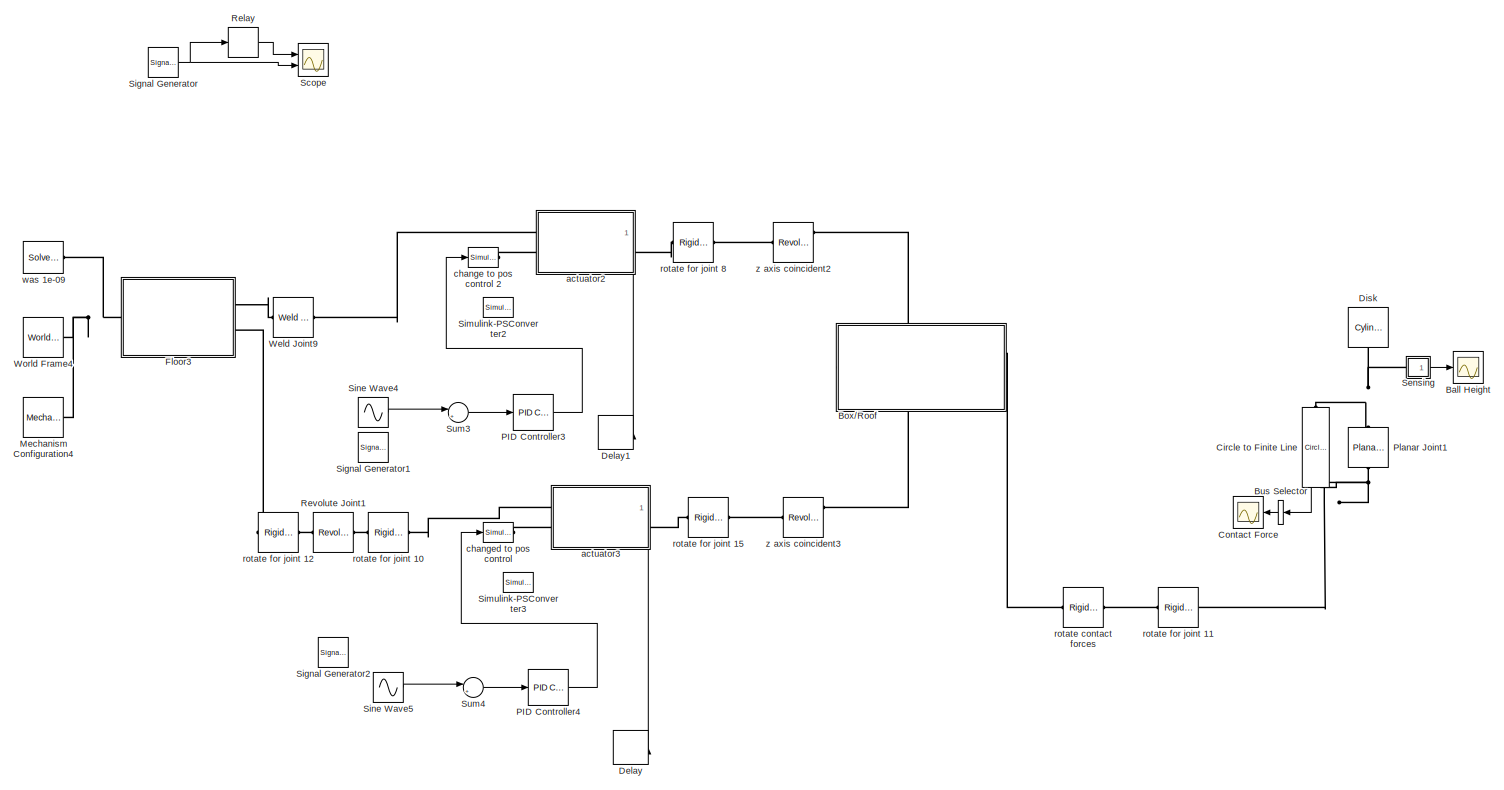
[diagram: root canvas - part 1/6, top left region]
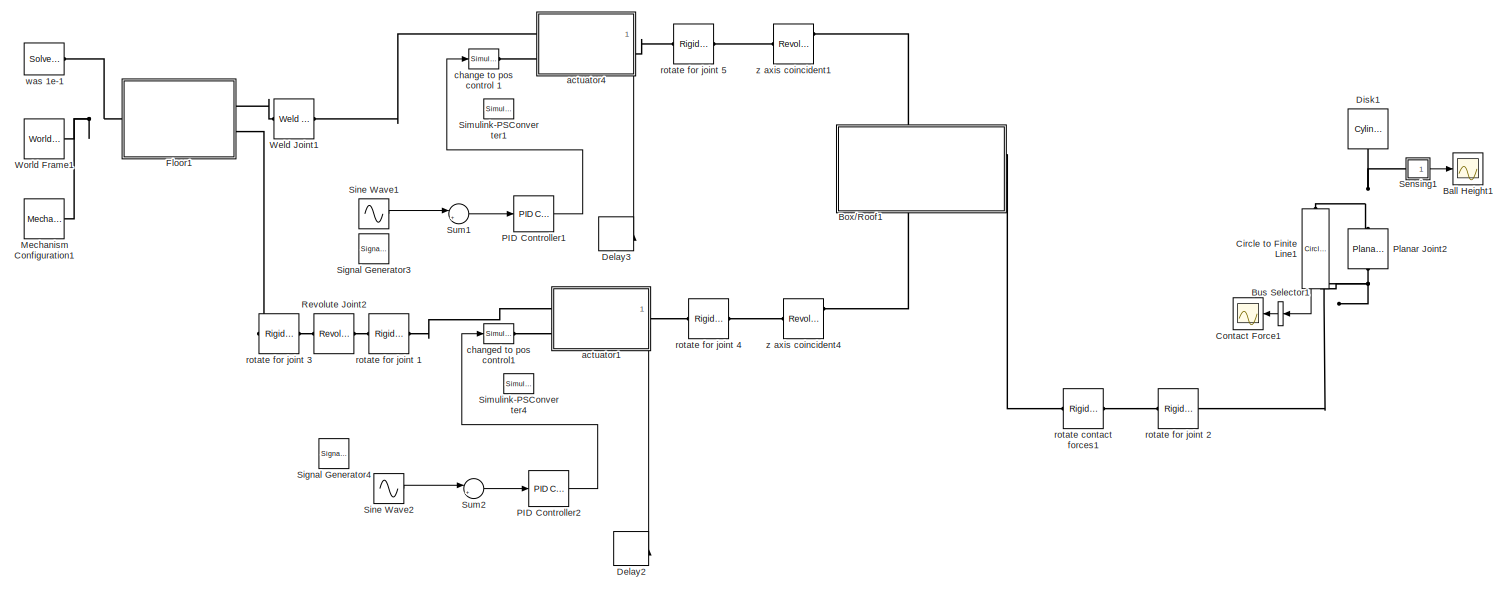
[diagram: root canvas - part 2/6, middle left region]
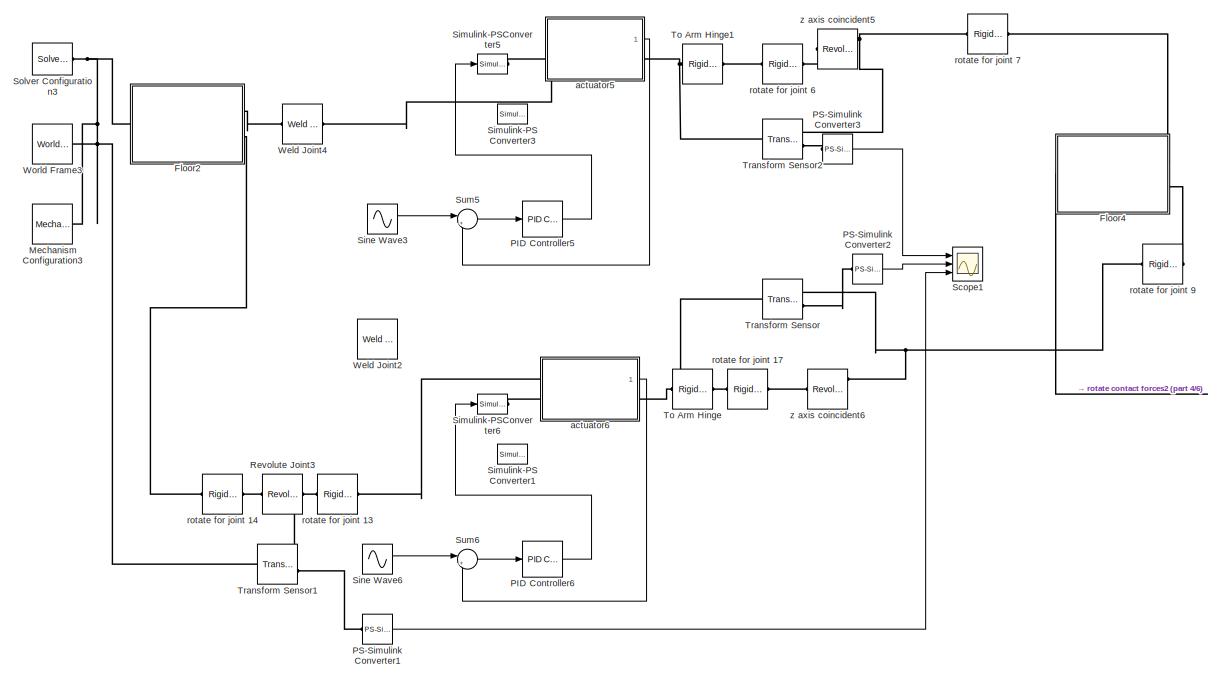
[diagram: root canvas - part 3/6, middle left region]
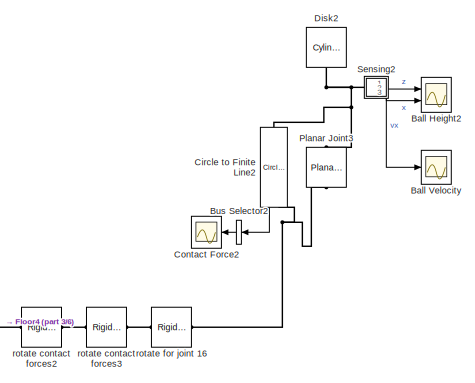
[diagram: root canvas - part 4/6, central region]
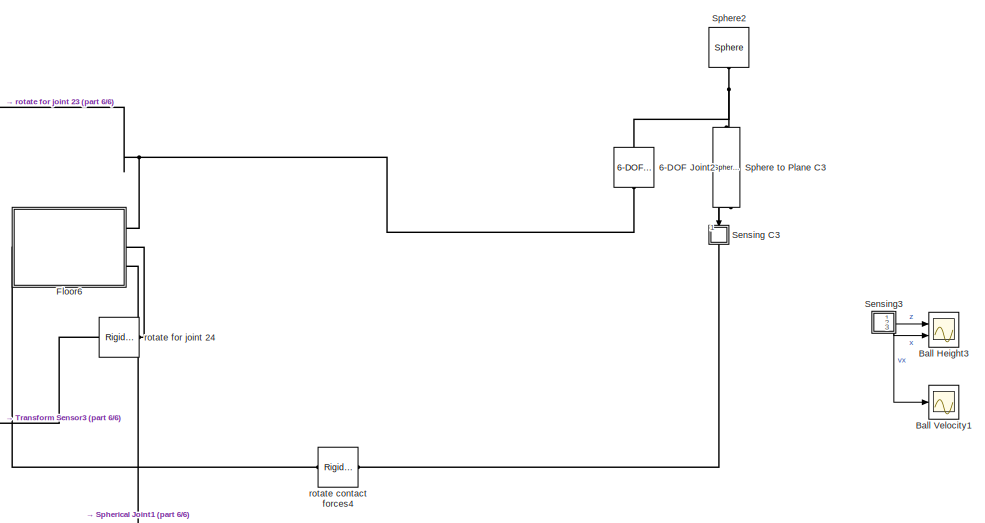
[diagram: root canvas - part 5/6, bottom right region]
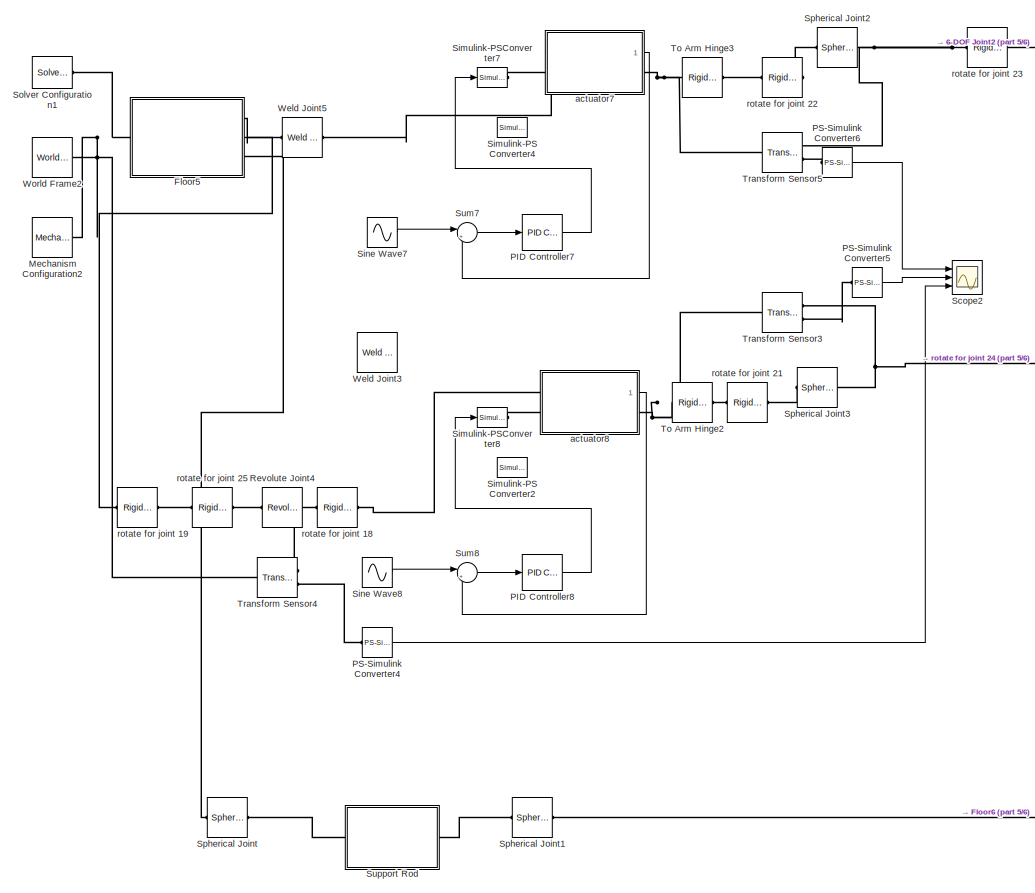
[diagram: root canvas - part 6/6, bottom center region]
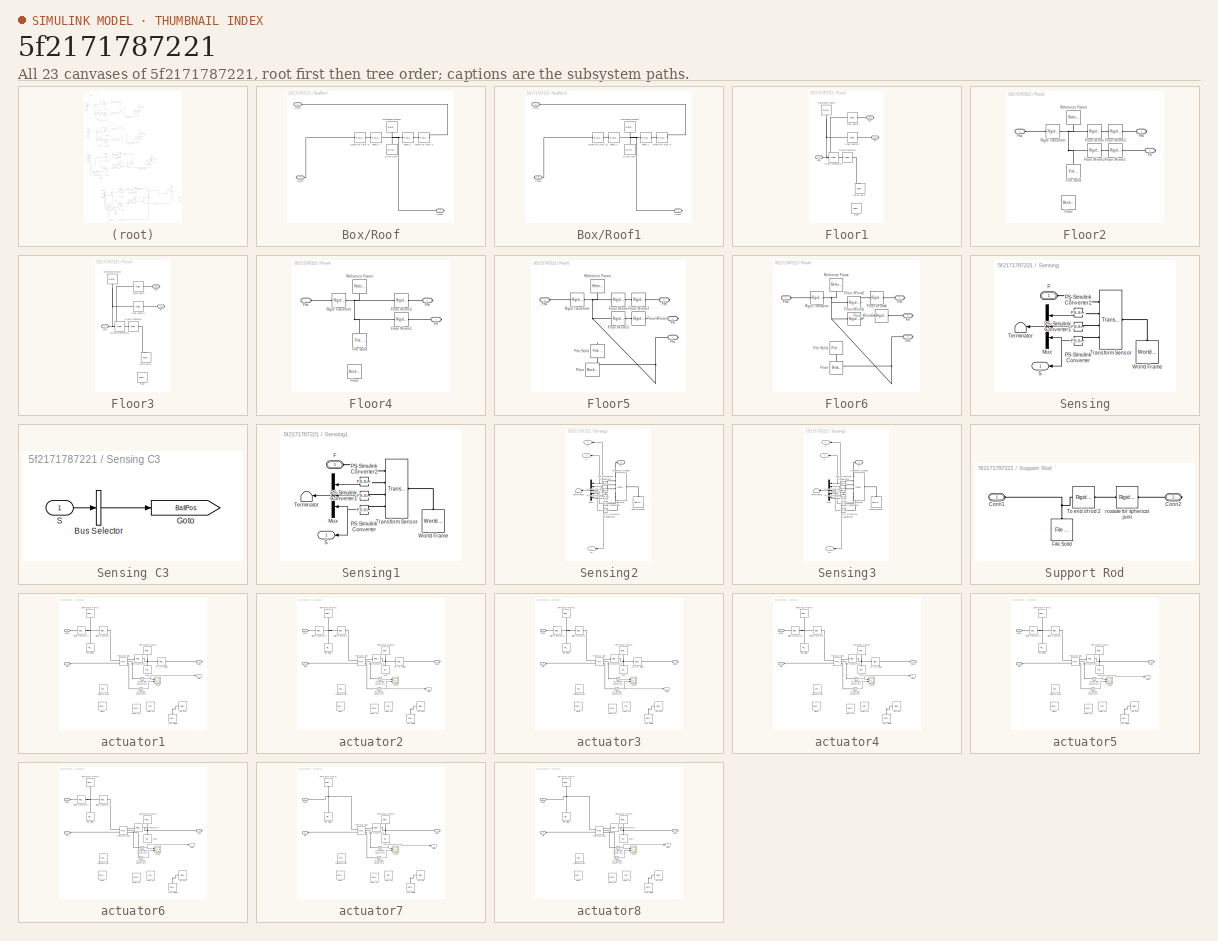
[diagram: thumbnail index - all 23 canvases of the model, root first then tree order]
MODEL slx_5f2171787221
KIND model
CONFIG AbsTol = auto
CONFIG EnableMultiTasking = off
CONFIG FixedStep = auto
CONFIG MaxStep = auto
CONFIG MinStep = auto
CONFIG RelTol = 1e-9
CONFIG SampleTimeConstraint = Unconstrained
CONFIG SolverName = VariableStepAuto
CONFIG StartTime = 0.0
CONFIG StopTime = 10.0
BLOCK [Reference] 6-DOF Joint2  REF=sm_lib/Joints/6-DOF Joint
  NameLocation = left
  Ports = [0, 0, 0, 0, 0, 1, 1]
  SourceBlock = sm_lib/Joints/6-DOF Joint
  SourceProductBaseCode = MS
  SourceType = 6-DOF Joint
BLOCK [Scope] Ball Height
  Commented = on
  Floating = off
  NumInputPorts = 1
  Ports = [1]
  ScopeSpecificationString = Simulink.scopes.TimeScopeBlockCfg('CurrentConfiguration', extmgr.ConfigurationSet(extmgr.Configuration('Core','General UI',true,'FigureColor',[0.501960784313725 0.501960784313725 0.501960784313725]),extmgr.Configuration('Core','Source UI',true),extmgr.Configuration('Sources','WiredSimulink',true,'DataLoggingSaveFormat','StructureWithTime','DataLoggingDecimation','1','DataLoggingVariableName','Scop...<+2715ch>
BLOCK [Scope] Ball Height1
  Commented = on
  Floating = off
  NumInputPorts = 1
  Ports = [1]
  ScopeSpecificationString = Simulink.scopes.TimeScopeBlockCfg('CurrentConfiguration', extmgr.ConfigurationSet(extmgr.Configuration('Core','General UI',true,'FigureColor',[0.501960784313725 0.501960784313725 0.501960784313725]),extmgr.Configuration('Core','Source UI',true),extmgr.Configuration('Sources','WiredSimulink',true,'DataLoggingSaveFormat','StructureWithTime','DataLoggingDecimation','1','DataLoggingVariableName','Scop...<+2715ch>
BLOCK [Scope] Ball Height2
  Commented = on
  Floating = off
  NumInputPorts = 2
  Ports = [2]
  ScopeSpecificationString = Simulink.scopes.TimeScopeBlockCfg('CurrentConfiguration', extmgr.ConfigurationSet(extmgr.Configuration('Core','General UI',true,'FigureColor',[0.501960784313725 0.501960784313725 0.501960784313725]),extmgr.Configuration('Core','Source UI',true),extmgr.Configuration('Sources','WiredSimulink',true,'DataLoggingSaveFormat','StructureWithTime','DataLoggingDecimation','1','DataLoggingVariableName','Scop...<+2696ch>
BLOCK [Scope] Ball Height3
  Commented = on
  Floating = off
  NumInputPorts = 2
  Ports = [2]
  ScopeSpecificationString = Simulink.scopes.TimeScopeBlockCfg('CurrentConfiguration', extmgr.ConfigurationSet(extmgr.Configuration('Core','General UI',true,'FigureColor',[0.501960784313725 0.501960784313725 0.501960784313725]),extmgr.Configuration('Core','Source UI',true),extmgr.Configuration('Sources','WiredSimulink',true,'DataLoggingSaveFormat','StructureWithTime','DataLoggingDecimation','1','DataLoggingVariableName','Scop...<+2696ch>
BLOCK [Scope] Ball Velocity
  Commented = on
  Floating = off
  NumInputPorts = 1
  Ports = [1]
  ScopeSpecificationString = Simulink.scopes.TimeScopeBlockCfg('CurrentConfiguration', extmgr.ConfigurationSet(extmgr.Configuration('Core','General UI',true,'FigureColor',[0.501960784313725 0.501960784313725 0.501960784313725]),extmgr.Configuration('Core','Source UI',true),extmgr.Configuration('Sources','WiredSimulink',true,'DataLoggingSaveFormat','StructureWithTime','DataLoggingDecimation','1','DataLoggingVariableName','Scop...<+2745ch>
BLOCK [Scope] Ball Velocity1
  Commented = on
  Floating = off
  NumInputPorts = 1
  Ports = [1]
  ScopeSpecificationString = Simulink.scopes.TimeScopeBlockCfg('CurrentConfiguration', extmgr.ConfigurationSet(extmgr.Configuration('Core','General UI',true,'FigureColor',[0.501960784313725 0.501960784313725 0.501960784313725]),extmgr.Configuration('Core','Source UI',true),extmgr.Configuration('Sources','WiredSimulink',true,'DataLoggingSaveFormat','StructureWithTime','DataLoggingDecimation','1','DataLoggingVariableName','Scop...<+2745ch>
BLOCK [SubSystem] Box//Roof
  Commented = on
  PortSchema = {"entries":[{"content":{"sides":[{"content":{"connectorIds":[]},"type":"ConnectorPlacement.EquallySpacedRectSide","uuid":"de237796-2987-4970-a5c6-71831bf98370"},{"content":{"connectorIds":["RConn1"],"side":"RIGHT"},"type":"ConnectorPlacement.EquallySpacedRectSide","uuid":"8fb3f0a6-11a2-4c04-bb69-9e278d8e315a"},{"content":{"connectorIds":["LConn1"],"side":"TOP"},"type":"ConnectorPlacement.EquallySp...<+397ch>
  Ports = [0, 0, 0, 0, 0, 1, 2]
  RequestExecContextInheritance = off
BLOCK [Reference] Box//Roof/Brick Solid  REF=sm_lib/Body Elements/Brick Solid
  NameLocation = right
  Ports = [0, 0, 0, 0, 0, 0, 1]
  SourceBlock = sm_lib/Body Elements/Brick Solid
  SourceProductBaseCode = MS
  SourceType = Brick Solid
BLOCK [PMIOPort] Box//Roof/Conn1
  Side = Left
BLOCK [PMIOPort] Box//Roof/Conn2
  Port = 3
  Side = Right
BLOCK [PMIOPort] Box//Roof/Conn3
  Port = 2
  Side = Right
BLOCK [Reference] Box//Roof/Reference Frame1  REF=sm_lib/Frames and
Transforms/Reference
Frame
  NameLocation = left
  Ports = [0, 0, 0, 0, 0, 0, 1]
  SourceBlock = sm_lib/Frames and\nTransforms/Reference\nFrame
  SourceProductBaseCode = MS
  SourceType = Reference\nFrame
BLOCK [Reference] Box//Roof/beam 1  REF=sm_lib/Frames and
Transforms/Rigid
Transform
  NameLocation = top
  Ports = [0, 0, 0, 0, 0, 1, 1]
  SourceBlock = sm_lib/Frames and\nTransforms/Rigid\nTransform
  SourceProductBaseCode = MS
  SourceType = Rigid\nTransform
BLOCK [Reference] Box//Roof/beam 2  REF=sm_lib/Frames and
Transforms/Rigid
Transform
  NameLocation = top
  Ports = [0, 0, 0, 0, 0, 1, 1]
  SourceBlock = sm_lib/Frames and\nTransforms/Rigid\nTransform
  SourceProductBaseCode = MS
  SourceType = Rigid\nTransform
BLOCK [Reference] Box//Roof/rotate for joint 16  REF=sm_lib/Frames and
Transforms/Rigid
Transform
  NameLocation = top
  Ports = [0, 0, 0, 0, 0, 1, 1]
  SourceBlock = sm_lib/Frames and\nTransforms/Rigid\nTransform
  SourceProductBaseCode = MS
  SourceType = Rigid\nTransform
BLOCK [Reference] Box//Roof/rotate for joint 9  REF=sm_lib/Frames and
Transforms/Rigid
Transform
  Ports = [0, 0, 0, 0, 0, 1, 1]
  SourceBlock = sm_lib/Frames and\nTransforms/Rigid\nTransform
  SourceProductBaseCode = MS
  SourceType = Rigid\nTransform
BLOCK [SubSystem] Box//Roof1
  Commented = on
  PortSchema = {"entries":[{"content":{"sides":[{"content":{"connectorIds":[]},"type":"ConnectorPlacement.EquallySpacedRectSide","uuid":"de237796-2987-4970-a5c6-71831bf98370"},{"content":{"connectorIds":["RConn1"],"side":"RIGHT"},"type":"ConnectorPlacement.EquallySpacedRectSide","uuid":"8fb3f0a6-11a2-4c04-bb69-9e278d8e315a"},{"content":{"connectorIds":["LConn1"],"side":"TOP"},"type":"ConnectorPlacement.EquallySp...<+397ch>
  Ports = [0, 0, 0, 0, 0, 1, 2]
  RequestExecContextInheritance = off
BLOCK [Reference] Box//Roof1/Brick Solid  REF=sm_lib/Body Elements/Brick Solid
  NameLocation = right
  Ports = [0, 0, 0, 0, 0, 0, 1]
  SourceBlock = sm_lib/Body Elements/Brick Solid
  SourceProductBaseCode = MS
  SourceType = Brick Solid
BLOCK [PMIOPort] Box//Roof1/Conn1
  Side = Left
BLOCK [PMIOPort] Box//Roof1/Conn2
  Port = 3
  Side = Right
BLOCK [PMIOPort] Box//Roof1/Conn3
  Port = 2
  Side = Right
BLOCK [Reference] Box//Roof1/Reference Frame1  REF=sm_lib/Frames and
Transforms/Reference
Frame
  NameLocation = left
  Ports = [0, 0, 0, 0, 0, 0, 1]
  SourceBlock = sm_lib/Frames and\nTransforms/Reference\nFrame
  SourceProductBaseCode = MS
  SourceType = Reference\nFrame
BLOCK [Reference] Box//Roof1/beam 1  REF=sm_lib/Frames and
Transforms/Rigid
Transform
  NameLocation = top
  Ports = [0, 0, 0, 0, 0, 1, 1]
  SourceBlock = sm_lib/Frames and\nTransforms/Rigid\nTransform
  SourceProductBaseCode = MS
  SourceType = Rigid\nTransform
BLOCK [Reference] Box//Roof1/beam 2  REF=sm_lib/Frames and
Transforms/Rigid
Transform
  NameLocation = top
  Ports = [0, 0, 0, 0, 0, 1, 1]
  SourceBlock = sm_lib/Frames and\nTransforms/Rigid\nTransform
  SourceProductBaseCode = MS
  SourceType = Rigid\nTransform
BLOCK [Reference] Box//Roof1/rotate for joint 16  REF=sm_lib/Frames and
Transforms/Rigid
Transform
  NameLocation = top
  Ports = [0, 0, 0, 0, 0, 1, 1]
  SourceBlock = sm_lib/Frames and\nTransforms/Rigid\nTransform
  SourceProductBaseCode = MS
  SourceType = Rigid\nTransform
BLOCK [Reference] Box//Roof1/rotate for joint 9  REF=sm_lib/Frames and
Transforms/Rigid
Transform
  Ports = [0, 0, 0, 0, 0, 1, 1]
  SourceBlock = sm_lib/Frames and\nTransforms/Rigid\nTransform
  SourceProductBaseCode = MS
  SourceType = Rigid\nTransform
BLOCK [BusSelector] Bus Selector
  Commented = on
  NameLocation = top
  OutputAsBus = on
  OutputSignals = Normal Force
  Ports = [1, 1]
BLOCK [BusSelector] Bus Selector1
  Commented = on
  NameLocation = top
  OutputAsBus = on
  OutputSignals = Normal Force
  Ports = [1, 1]
BLOCK [BusSelector] Bus Selector2
  Commented = on
  NameLocation = top
  OutputAsBus = on
  OutputSignals = Normal Force
  Ports = [1, 1]
BLOCK [Reference] Circle to Finite Line  REF=Contact_Forces_Lib/2D/Circle to Finite Line Force
  Commented = on
  NameLocation = left
  Ports = [0, 1, 0, 0, 0, 1, 1]
  SourceBlock = Contact_Forces_Lib/2D/Circle to Finite Line Force
  SourceProductName = Simscape Multibody Contact Forces Library
  SourceType = Circle on Finite Line Force
BLOCK [Reference] Circle to Finite Line1  REF=Contact_Forces_Lib/2D/Circle to Finite Line Force
  Commented = on
  NameLocation = left
  Ports = [0, 1, 0, 0, 0, 1, 1]
  SourceBlock = Contact_Forces_Lib/2D/Circle to Finite Line Force
  SourceProductName = Simscape Multibody Contact Forces Library
  SourceType = Circle on Finite Line Force
BLOCK [Reference] Circle to Finite Line2  REF=Contact_Forces_Lib/2D/Circle to Finite Line Force
  Commented = on
  NameLocation = left
  Ports = [0, 1, 0, 0, 0, 1, 1]
  SourceBlock = Contact_Forces_Lib/2D/Circle to Finite Line Force
  SourceProductName = Simscape Multibody Contact Forces Library
  SourceType = Circle on Finite Line Force
BLOCK [Scope] Contact Force
  Commented = on
  Floating = off
  NumInputPorts = 1
  Ports = [1]
  ScopeSpecificationString = Simulink.scopes.TimeScopeBlockCfg('CurrentConfiguration', extmgr.ConfigurationSet(extmgr.Configuration('Core','General UI',true,'FigureColor',[0.501960784313725 0.501960784313725 0.501960784313725]),extmgr.Configuration('Core','Source UI',true),extmgr.Configuration('Sources','WiredSimulink',true,'DataLoggingSaveFormat','StructureWithTime','DataLoggingDecimation','1','DataLoggingDecimateData',true,...<+2643ch>
BLOCK [Scope] Contact Force1
  Commented = on
  Floating = off
  NumInputPorts = 1
  Ports = [1]
  ScopeSpecificationString = Simulink.scopes.TimeScopeBlockCfg('CurrentConfiguration', extmgr.ConfigurationSet(extmgr.Configuration('Core','General UI',true,'FigureColor',[0.501960784313725 0.501960784313725 0.501960784313725]),extmgr.Configuration('Core','Source UI',true),extmgr.Configuration('Sources','WiredSimulink',true,'DataLoggingSaveFormat','StructureWithTime','DataLoggingDecimation','1','DataLoggingDecimateData',true,...<+2643ch>
BLOCK [Scope] Contact Force2
  Commented = on
  Floating = off
  NumInputPorts = 1
  Ports = [1]
  ScopeSpecificationString = Simulink.scopes.TimeScopeBlockCfg('CurrentConfiguration', extmgr.ConfigurationSet(extmgr.Configuration('Core','General UI',true,'FigureColor',[0.501960784313725 0.501960784313725 0.501960784313725]),extmgr.Configuration('Core','Source UI',true),extmgr.Configuration('Sources','WiredSimulink',true,'DataLoggingSaveFormat','StructureWithTime','DataLoggingDecimation','1','DataLoggingDecimateData',true,...<+2644ch>
BLOCK [Delay] Delay
  Commented = on
  DelayLength = 1
  InitialCondition = 0
  InputPortMap = u0
  NameLocation = top
  Ports = [1, 1]
BLOCK [Delay] Delay1
  Commented = on
  DelayLength = 1
  InitialCondition = 0
  InputPortMap = u0
  NameLocation = top
  Ports = [1, 1]
BLOCK [Delay] Delay2
  Commented = on
  DelayLength = 1
  InitialCondition = 0
  InputPortMap = u0
  NameLocation = top
  Ports = [1, 1]
BLOCK [Delay] Delay3
  Commented = on
  DelayLength = 1
  InitialCondition = 0
  InputPortMap = u0
  NameLocation = top
  Ports = [1, 1]
BLOCK [Reference] Disk  REF=Parts_Lib/Cylinder
  Commented = on
  NameLocation = right
  Ports = [0, 0, 0, 0, 0, 1]
  SourceBlock = Parts_Lib/Cylinder
  SourceType = Solid Cylinder with Markings
BLOCK [Reference] Disk1  REF=Parts_Lib/Cylinder
  Commented = on
  NameLocation = right
  Ports = [0, 0, 0, 0, 0, 1]
  SourceBlock = Parts_Lib/Cylinder
  SourceType = Solid Cylinder with Markings
BLOCK [Reference] Disk2  REF=Parts_Lib/Cylinder
  Commented = on
  NameLocation = right
  Ports = [0, 0, 0, 0, 0, 1]
  SourceBlock = Parts_Lib/Cylinder
  SourceType = Solid Cylinder with Markings
BLOCK [SubSystem] Floor1
  Commented = on
  Ports = [0, 0, 0, 0, 0, 1, 2]
  RequestExecContextInheritance = off
BLOCK [Reference] Floor1/Brick Solid  REF=sm_lib/Body Elements/Brick Solid
  NameLocation = right
  Ports = [0, 0, 0, 0, 0, 0, 1]
  SourceBlock = sm_lib/Body Elements/Brick Solid
  SourceProductBaseCode = MS
  SourceType = Brick Solid
BLOCK [PMIOPort] Floor1/Ffb
  NameLocation = top
  Port = 2
  Side = Right
BLOCK [PMIOPort] Floor1/Ffr
  NameLocation = top
  Port = 3
  Side = Right
BLOCK [PMIOPort] Floor1/Ffw
  NameLocation = top
  Side = Left
BLOCK [Reference] Floor1/Floor  REF=sm_lib/Body Elements/Brick Solid
  Commented = on
  NameLocation = right
  Ports = [0, 0, 0, 0, 0, 0, 1]
  SourceBlock = sm_lib/Body Elements/Brick Solid
  SourceProductBaseCode = MS
  SourceType = Brick Solid
BLOCK [Reference] Floor1/Floor XForm  REF=sm_lib/Frames and
Transforms/Rigid
Transform
  NameLocation = top
  Ports = [0, 0, 0, 0, 0, 1, 1]
  SourceBlock = sm_lib/Frames and\nTransforms/Rigid\nTransform
  SourceProductBaseCode = MS
  SourceType = Rigid\nTransform
BLOCK [Reference] Floor1/Floor XForm4  REF=sm_lib/Frames and
Transforms/Rigid
Transform
  NameLocation = top
  Ports = [0, 0, 0, 0, 0, 1, 1]
  SourceBlock = sm_lib/Frames and\nTransforms/Rigid\nTransform
  SourceProductBaseCode = MS
  SourceType = Rigid\nTransform
BLOCK [Reference] Floor1/Reference Frame  REF=sm_lib/Frames and
Transforms/Reference
Frame
  NameLocation = left
  Ports = [0, 0, 0, 0, 0, 0, 1]
  SourceBlock = sm_lib/Frames and\nTransforms/Reference\nFrame
  SourceProductBaseCode = MS
  SourceType = Reference\nFrame
BLOCK [Reference] Floor1/Rigid Transform  REF=sm_lib/Frames and
Transforms/Rigid
Transform
  NameLocation = top
  Ports = [0, 0, 0, 0, 0, 1, 1]
  SourceBlock = sm_lib/Frames and\nTransforms/Rigid\nTransform
  SourceProductBaseCode = MS
  SourceType = Rigid\nTransform
BLOCK [Reference] Floor1/Rigid Transform1  REF=sm_lib/Frames and
Transforms/Rigid
Transform
  NameLocation = top
  Ports = [0, 0, 0, 0, 0, 1, 1]
  SourceBlock = sm_lib/Frames and\nTransforms/Rigid\nTransform
  SourceProductBaseCode = MS
  SourceType = Rigid\nTransform
BLOCK [SubSystem] Floor2
  Commented = on
  Ports = [0, 0, 0, 0, 0, 1, 2]
  RequestExecContextInheritance = off
BLOCK [PMIOPort] Floor2/Ffb
  NameLocation = top
  Port = 2
  Side = Right
BLOCK [PMIOPort] Floor2/Ffr
  NameLocation = top
  Port = 3
  Side = Right
BLOCK [PMIOPort] Floor2/Ffw
  NameLocation = top
  Side = Left
BLOCK [Reference] Floor2/File Solid  REF=sm_lib/Body Elements/File Solid
  NameLocation = right
  Ports = [0, 0, 0, 0, 0, 0, 1]
  SourceBlock = sm_lib/Body Elements/File Solid
  SourceProductBaseCode = MS
  SourceType = File Solid
BLOCK [Reference] Floor2/Floor  REF=sm_lib/Body Elements/Brick Solid
  Commented = on
  NameLocation = right
  Ports = [0, 0, 0, 0, 0, 0, 1]
  SourceBlock = sm_lib/Body Elements/Brick Solid
  SourceProductBaseCode = MS
  SourceType = Brick Solid
BLOCK [Reference] Floor2/Floor XForm  REF=sm_lib/Frames and
Transforms/Rigid
Transform
  NameLocation = top
  Ports = [0, 0, 0, 0, 0, 1, 1]
  SourceBlock = sm_lib/Frames and\nTransforms/Rigid\nTransform
  SourceProductBaseCode = MS
  SourceType = Rigid\nTransform
BLOCK [Reference] Floor2/Floor XForm1  REF=sm_lib/Frames and
Transforms/Rigid
Transform
  NameLocation = top
  Ports = [0, 0, 0, 0, 0, 1, 1]
  SourceBlock = sm_lib/Frames and\nTransforms/Rigid\nTransform
  SourceProductBaseCode = MS
  SourceType = Rigid\nTransform
BLOCK [Reference] Floor2/Floor XForm2  REF=sm_lib/Frames and
Transforms/Rigid
Transform
  NameLocation = top
  Ports = [0, 0, 0, 0, 0, 1, 1]
  SourceBlock = sm_lib/Frames and\nTransforms/Rigid\nTransform
  SourceProductBaseCode = MS
  SourceType = Rigid\nTransform
BLOCK [Reference] Floor2/Floor XForm3  REF=sm_lib/Frames and
Transforms/Rigid
Transform
  NameLocation = top
  Ports = [0, 0, 0, 0, 0, 1, 1]
  SourceBlock = sm_lib/Frames and\nTransforms/Rigid\nTransform
  SourceProductBaseCode = MS
  SourceType = Rigid\nTransform
BLOCK [Reference] Floor2/Reference Frame  REF=sm_lib/Frames and
Transforms/Reference
Frame
  NameLocation = left
  Ports = [0, 0, 0, 0, 0, 0, 1]
  SourceBlock = sm_lib/Frames and\nTransforms/Reference\nFrame
  SourceProductBaseCode = MS
  SourceType = Reference\nFrame
BLOCK [Reference] Floor2/Rigid Transform  REF=sm_lib/Frames and
Transforms/Rigid
Transform
  NameLocation = top
  Ports = [0, 0, 0, 0, 0, 1, 1]
  SourceBlock = sm_lib/Frames and\nTransforms/Rigid\nTransform
  SourceProductBaseCode = MS
  SourceType = Rigid\nTransform
BLOCK [SubSystem] Floor3
  Commented = on
  Ports = [0, 0, 0, 0, 0, 1, 2]
  RequestExecContextInheritance = off
BLOCK [Reference] Floor3/Brick Solid  REF=sm_lib/Body Elements/Brick Solid
  NameLocation = right
  Ports = [0, 0, 0, 0, 0, 0, 1]
  SourceBlock = sm_lib/Body Elements/Brick Solid
  SourceProductBaseCode = MS
  SourceType = Brick Solid
BLOCK [PMIOPort] Floor3/Ffb
  NameLocation = top
  Port = 2
  Side = Right
BLOCK [PMIOPort] Floor3/Ffr
  NameLocation = top
  Port = 3
  Side = Right
BLOCK [PMIOPort] Floor3/Ffw
  NameLocation = top
  Side = Left
BLOCK [Reference] Floor3/Floor  REF=sm_lib/Body Elements/Brick Solid
  Commented = on
  NameLocation = right
  Ports = [0, 0, 0, 0, 0, 0, 1]
  SourceBlock = sm_lib/Body Elements/Brick Solid
  SourceProductBaseCode = MS
  SourceType = Brick Solid
BLOCK [Reference] Floor3/Floor XForm  REF=sm_lib/Frames and
Transforms/Rigid
Transform
  NameLocation = top
  Ports = [0, 0, 0, 0, 0, 1, 1]
  SourceBlock = sm_lib/Frames and\nTransforms/Rigid\nTransform
  SourceProductBaseCode = MS
  SourceType = Rigid\nTransform
BLOCK [Reference] Floor3/Floor XForm4  REF=sm_lib/Frames and
Transforms/Rigid
Transform
  NameLocation = top
  Ports = [0, 0, 0, 0, 0, 1, 1]
  SourceBlock = sm_lib/Frames and\nTransforms/Rigid\nTransform
  SourceProductBaseCode = MS
  SourceType = Rigid\nTransform
BLOCK [Reference] Floor3/Reference Frame  REF=sm_lib/Frames and
Transforms/Reference
Frame
  NameLocation = left
  Ports = [0, 0, 0, 0, 0, 0, 1]
  SourceBlock = sm_lib/Frames and\nTransforms/Reference\nFrame
  SourceProductBaseCode = MS
  SourceType = Reference\nFrame
BLOCK [Reference] Floor3/Rigid Transform  REF=sm_lib/Frames and
Transforms/Rigid
Transform
  NameLocation = top
  Ports = [0, 0, 0, 0, 0, 1, 1]
  SourceBlock = sm_lib/Frames and\nTransforms/Rigid\nTransform
  SourceProductBaseCode = MS
  SourceType = Rigid\nTransform
BLOCK [Reference] Floor3/Rigid Transform1  REF=sm_lib/Frames and
Transforms/Rigid
Transform
  NameLocation = top
  Ports = [0, 0, 0, 0, 0, 1, 1]
  SourceBlock = sm_lib/Frames and\nTransforms/Rigid\nTransform
  SourceProductBaseCode = MS
  SourceType = Rigid\nTransform
BLOCK [SubSystem] Floor4
  Commented = on
  Ports = [0, 0, 0, 0, 0, 1, 2]
  RequestExecContextInheritance = off
BLOCK [PMIOPort] Floor4/Ffb
  NameLocation = top
  Port = 2
  Side = Right
BLOCK [PMIOPort] Floor4/Ffr
  NameLocation = top
  Port = 3
  Side = Right
BLOCK [PMIOPort] Floor4/Ffw
  NameLocation = top
  Side = Left
BLOCK [Reference] Floor4/File Solid  REF=sm_lib/Body Elements/File Solid
  NameLocation = right
  Ports = [0, 0, 0, 0, 0, 0, 1]
  SourceBlock = sm_lib/Body Elements/File Solid
  SourceProductBaseCode = MS
  SourceType = File Solid
BLOCK [Reference] Floor4/Floor  REF=sm_lib/Body Elements/Brick Solid
  Commented = on
  NameLocation = right
  Ports = [0, 0, 0, 0, 0, 0, 1]
  SourceBlock = sm_lib/Body Elements/Brick Solid
  SourceProductBaseCode = MS
  SourceType = Brick Solid
BLOCK [Reference] Floor4/Floor XForm1  REF=sm_lib/Frames and
Transforms/Rigid
Transform
  NameLocation = top
  Ports = [0, 0, 0, 0, 0, 1, 1]
  SourceBlock = sm_lib/Frames and\nTransforms/Rigid\nTransform
  SourceProductBaseCode = MS
  SourceType = Rigid\nTransform
BLOCK [Reference] Floor4/Floor XForm2  REF=sm_lib/Frames and
Transforms/Rigid
Transform
  NameLocation = top
  Ports = [0, 0, 0, 0, 0, 1, 1]
  SourceBlock = sm_lib/Frames and\nTransforms/Rigid\nTransform
  SourceProductBaseCode = MS
  SourceType = Rigid\nTransform
BLOCK [Reference] Floor4/Reference Frame  REF=sm_lib/Frames and
Transforms/Reference
Frame
  NameLocation = left
  Ports = [0, 0, 0, 0, 0, 0, 1]
  SourceBlock = sm_lib/Frames and\nTransforms/Reference\nFrame
  SourceProductBaseCode = MS
  SourceType = Reference\nFrame
BLOCK [Reference] Floor4/Rigid Transform  REF=sm_lib/Frames and
Transforms/Rigid
Transform
  NameLocation = top
  Ports = [0, 0, 0, 0, 0, 1, 1]
  SourceBlock = sm_lib/Frames and\nTransforms/Rigid\nTransform
  SourceProductBaseCode = MS
  SourceType = Rigid\nTransform
BLOCK [SubSystem] Floor5
  Ports = [0, 0, 0, 0, 0, 1, 3]
  RequestExecContextInheritance = off
BLOCK [PMIOPort] Floor5/Ffb
  NameLocation = top
  Port = 2
  Side = Right
BLOCK [PMIOPort] Floor5/Ffr
  NameLocation = top
  Port = 3
  Side = Right
BLOCK [PMIOPort] Floor5/Ffs
  NameLocation = top
  Port = 4
  Side = Right
BLOCK [PMIOPort] Floor5/Ffw
  NameLocation = top
  Side = Left
BLOCK [Reference] Floor5/File Solid  REF=sm_lib/Body Elements/File Solid
  NameLocation = right
  Ports = [0, 0, 0, 0, 0, 0, 1]
  SourceBlock = sm_lib/Body Elements/File Solid
  SourceProductBaseCode = MS
  SourceType = File Solid
BLOCK [Reference] Floor5/Floor  REF=sm_lib/Body Elements/Brick Solid
  Commented = on
  NameLocation = right
  Ports = [0, 0, 0, 0, 0, 0, 1]
  SourceBlock = sm_lib/Body Elements/Brick Solid
  SourceProductBaseCode = MS
  SourceType = Brick Solid
BLOCK [Reference] Floor5/Floor XForm  REF=sm_lib/Frames and
Transforms/Rigid
Transform
  NameLocation = top
  Ports = [0, 0, 0, 0, 0, 1, 1]
  SourceBlock = sm_lib/Frames and\nTransforms/Rigid\nTransform
  SourceProductBaseCode = MS
  SourceType = Rigid\nTransform
BLOCK [Reference] Floor5/Floor XForm1  REF=sm_lib/Frames and
Transforms/Rigid
Transform
  NameLocation = top
  Ports = [0, 0, 0, 0, 0, 1, 1]
  SourceBlock = sm_lib/Frames and\nTransforms/Rigid\nTransform
  SourceProductBaseCode = MS
  SourceType = Rigid\nTransform
BLOCK [Reference] Floor5/Floor XForm2  REF=sm_lib/Frames and
Transforms/Rigid
Transform
  NameLocation = top
  Ports = [0, 0, 0, 0, 0, 1, 1]
  SourceBlock = sm_lib/Frames and\nTransforms/Rigid\nTransform
  SourceProductBaseCode = MS
  SourceType = Rigid\nTransform
BLOCK [Reference] Floor5/Floor XForm3  REF=sm_lib/Frames and
Transforms/Rigid
Transform
  NameLocation = top
  Ports = [0, 0, 0, 0, 0, 1, 1]
  SourceBlock = sm_lib/Frames and\nTransforms/Rigid\nTransform
  SourceProductBaseCode = MS
  SourceType = Rigid\nTransform
BLOCK [Reference] Floor5/Reference Frame  REF=sm_lib/Frames and
Transforms/Reference
Frame
  NameLocation = left
  Ports = [0, 0, 0, 0, 0, 0, 1]
  SourceBlock = sm_lib/Frames and\nTransforms/Reference\nFrame
  SourceProductBaseCode = MS
  SourceType = Reference\nFrame
BLOCK [Reference] Floor5/Rigid Transform  REF=sm_lib/Frames and
Transforms/Rigid
Transform
  NameLocation = top
  Ports = [0, 0, 0, 0, 0, 1, 1]
  SourceBlock = sm_lib/Frames and\nTransforms/Rigid\nTransform
  SourceProductBaseCode = MS
  SourceType = Rigid\nTransform
BLOCK [SubSystem] Floor6
  Ports = [0, 0, 0, 0, 0, 1, 3]
  RequestExecContextInheritance = off
BLOCK [PMIOPort] Floor6/Ffb
  NameLocation = top
  Port = 2
  Side = Right
BLOCK [PMIOPort] Floor6/Ffr
  NameLocation = top
  Port = 3
  Side = Right
BLOCK [PMIOPort] Floor6/Ffs
  NameLocation = top
  Port = 4
  Side = Right
BLOCK [PMIOPort] Floor6/Ffw
  NameLocation = top
  Side = Left
BLOCK [Reference] Floor6/File Solid  REF=sm_lib/Body Elements/File Solid
  NameLocation = right
  Ports = [0, 0, 0, 0, 0, 0, 1]
  SourceBlock = sm_lib/Body Elements/File Solid
  SourceProductBaseCode = MS
  SourceType = File Solid
BLOCK [Reference] Floor6/Floor  REF=sm_lib/Body Elements/Brick Solid
  Commented = on
  NameLocation = right
  Ports = [0, 0, 0, 0, 0, 0, 1]
  SourceBlock = sm_lib/Body Elements/Brick Solid
  SourceProductBaseCode = MS
  SourceType = Brick Solid
BLOCK [Reference] Floor6/Floor XForm1  REF=sm_lib/Frames and
Transforms/Rigid
Transform
  NameLocation = top
  Ports = [0, 0, 0, 0, 0, 1, 1]
  SourceBlock = sm_lib/Frames and\nTransforms/Rigid\nTransform
  SourceProductBaseCode = MS
  SourceType = Rigid\nTransform
BLOCK [Reference] Floor6/Floor XForm2  REF=sm_lib/Frames and
Transforms/Rigid
Transform
  NameLocation = top
  Ports = [0, 0, 0, 0, 0, 1, 1]
  SourceBlock = sm_lib/Frames and\nTransforms/Rigid\nTransform
  SourceProductBaseCode = MS
  SourceType = Rigid\nTransform
BLOCK [Reference] Floor6/Floor XForm4  REF=sm_lib/Frames and
Transforms/Rigid
Transform
  NameLocation = top
  Ports = [0, 0, 0, 0, 0, 1, 1]
  SourceBlock = sm_lib/Frames and\nTransforms/Rigid\nTransform
  SourceProductBaseCode = MS
  SourceType = Rigid\nTransform
BLOCK [Reference] Floor6/Floor XForm5  REF=sm_lib/Frames and
Transforms/Rigid
Transform
  NameLocation = top
  Ports = [0, 0, 0, 0, 0, 1, 1]
  SourceBlock = sm_lib/Frames and\nTransforms/Rigid\nTransform
  SourceProductBaseCode = MS
  SourceType = Rigid\nTransform
BLOCK [Reference] Floor6/Reference Frame  REF=sm_lib/Frames and
Transforms/Reference
Frame
  NameLocation = left
  Ports = [0, 0, 0, 0, 0, 0, 1]
  SourceBlock = sm_lib/Frames and\nTransforms/Reference\nFrame
  SourceProductBaseCode = MS
  SourceType = Reference\nFrame
BLOCK [Reference] Floor6/Rigid Transform  REF=sm_lib/Frames and
Transforms/Rigid
Transform
  NameLocation = top
  Ports = [0, 0, 0, 0, 0, 1, 1]
  SourceBlock = sm_lib/Frames and\nTransforms/Rigid\nTransform
  SourceProductBaseCode = MS
  SourceType = Rigid\nTransform
BLOCK [Reference] Mechanism Configuration1  REF=sm_lib/Utilities/Mechanism
Configuration
  Commented = on
  Ports = [0, 0, 0, 0, 0, 0, 1]
  SourceBlock = sm_lib/Utilities/Mechanism\nConfiguration
  SourceProductBaseCode = MS
  SourceType = Mechanism\nConfiguration
BLOCK [Reference] Mechanism Configuration2  REF=sm_lib/Utilities/Mechanism
Configuration
  Ports = [0, 0, 0, 0, 0, 0, 1]
  SourceBlock = sm_lib/Utilities/Mechanism\nConfiguration
  SourceProductBaseCode = MS
  SourceType = Mechanism\nConfiguration
BLOCK [Reference] Mechanism Configuration3  REF=sm_lib/Utilities/Mechanism
Configuration
  Commented = on
  Ports = [0, 0, 0, 0, 0, 0, 1]
  SourceBlock = sm_lib/Utilities/Mechanism\nConfiguration
  SourceProductBaseCode = MS
  SourceType = Mechanism\nConfiguration
BLOCK [Reference] Mechanism Configuration4  REF=sm_lib/Utilities/Mechanism
Configuration
  Commented = on
  Ports = [0, 0, 0, 0, 0, 0, 1]
  SourceBlock = sm_lib/Utilities/Mechanism\nConfiguration
  SourceProductBaseCode = MS
  SourceType = Mechanism\nConfiguration
BLOCK [Reference] PID Controller1  REF=pid_lib/PID Controller
  Commented = on
  Ports = [1, 1]
  SourceBlock = pid_lib/PID Controller
  SourceProductBaseCode = SL
  SourceType = PID 1dof
BLOCK [Reference] PID Controller2  REF=pid_lib/PID Controller
  Commented = on
  Ports = [1, 1]
  SourceBlock = pid_lib/PID Controller
  SourceProductBaseCode = SL
  SourceType = PID 1dof
BLOCK [Reference] PID Controller3  REF=pid_lib/PID Controller
  Commented = on
  Ports = [1, 1]
  SourceBlock = pid_lib/PID Controller
  SourceProductBaseCode = SL
  SourceType = PID 1dof
BLOCK [Reference] PID Controller4  REF=pid_lib/PID Controller
  Commented = on
  Ports = [1, 1]
  SourceBlock = pid_lib/PID Controller
  SourceProductBaseCode = SL
  SourceType = PID 1dof
BLOCK [Reference] PID Controller5  REF=pid_lib/PID Controller
  Commented = on
  Ports = [1, 1]
  SourceBlock = pid_lib/PID Controller
  SourceProductBaseCode = SL
  SourceType = PID 1dof
BLOCK [Reference] PID Controller6  REF=pid_lib/PID Controller
  Commented = on
  Ports = [1, 1]
  SourceBlock = pid_lib/PID Controller
  SourceProductBaseCode = SL
  SourceType = PID 1dof
BLOCK [Reference] PID Controller7  REF=pid_lib/PID Controller
  Ports = [1, 1]
  SourceBlock = pid_lib/PID Controller
  SourceProductBaseCode = SL
  SourceType = PID 1dof
BLOCK [Reference] PID Controller8  REF=pid_lib/PID Controller
  Ports = [1, 1]
  SourceBlock = pid_lib/PID Controller
  SourceProductBaseCode = SL
  SourceType = PID 1dof
BLOCK [Reference] PS-Simulink Converter1  REF=nesl_utility/PS-Simulink
Converter
  Commented = on
  Ports = [0, 1, 0, 0, 0, 1]
  SourceBlock = nesl_utility/PS-Simulink\nConverter
  SourceProductBaseCode = SS
  SourceType = PS-Simulink\nConverter
BLOCK [Reference] PS-Simulink Converter2  REF=nesl_utility/PS-Simulink
Converter
  Commented = on
  Ports = [0, 1, 0, 0, 0, 1]
  SourceBlock = nesl_utility/PS-Simulink\nConverter
  SourceProductBaseCode = SS
  SourceType = PS-Simulink\nConverter
BLOCK [Reference] PS-Simulink Converter3  REF=nesl_utility/PS-Simulink
Converter
  Commented = on
  Ports = [0, 1, 0, 0, 0, 1]
  SourceBlock = nesl_utility/PS-Simulink\nConverter
  SourceProductBaseCode = SS
  SourceType = PS-Simulink\nConverter
BLOCK [Reference] PS-Simulink Converter4  REF=nesl_utility/PS-Simulink
Converter
  Ports = [0, 1, 0, 0, 0, 1]
  SourceBlock = nesl_utility/PS-Simulink\nConverter
  SourceProductBaseCode = SS
  SourceType = PS-Simulink\nConverter
BLOCK [Reference] PS-Simulink Converter5  REF=nesl_utility/PS-Simulink
Converter
  Ports = [0, 1, 0, 0, 0, 1]
  SourceBlock = nesl_utility/PS-Simulink\nConverter
  SourceProductBaseCode = SS
  SourceType = PS-Simulink\nConverter
BLOCK [Reference] PS-Simulink Converter6  REF=nesl_utility/PS-Simulink
Converter
  Ports = [0, 1, 0, 0, 0, 1]
  SourceBlock = nesl_utility/PS-Simulink\nConverter
  SourceProductBaseCode = SS
  SourceType = PS-Simulink\nConverter
BLOCK [Reference] Planar Joint1  REF=sm_lib/Joints/Planar Joint
  Commented = on
  NameLocation = right
  Ports = [0, 0, 0, 0, 0, 1, 1]
  SourceBlock = sm_lib/Joints/Planar Joint
  SourceProductBaseCode = MS
  SourceType = Planar Joint
BLOCK [Reference] Planar Joint2  REF=sm_lib/Joints/Planar Joint
  Commented = on
  NameLocation = right
  Ports = [0, 0, 0, 0, 0, 1, 1]
  SourceBlock = sm_lib/Joints/Planar Joint
  SourceProductBaseCode = MS
  SourceType = Planar Joint
BLOCK [Reference] Planar Joint3  REF=sm_lib/Joints/Planar Joint
  Commented = on
  NameLocation = right
  Ports = [0, 0, 0, 0, 0, 1, 1]
  SourceBlock = sm_lib/Joints/Planar Joint
  SourceProductBaseCode = MS
  SourceType = Planar Joint
BLOCK [Relay] Relay
  OffOutputValue = -24
  OffSwitchValue = -1
  OnOutputValue = 24
  OnSwitchValue = 1
BLOCK [Reference] Revolute Joint1  REF=sm_lib/Joints/Revolute Joint
  Commented = on
  Ports = [0, 0, 0, 0, 0, 1, 1]
  SourceBlock = sm_lib/Joints/Revolute Joint
  SourceProductBaseCode = MS
  SourceType = Revolute Joint
BLOCK [Reference] Revolute Joint2  REF=sm_lib/Joints/Revolute Joint
  Commented = on
  Ports = [0, 0, 0, 0, 0, 1, 1]
  SourceBlock = sm_lib/Joints/Revolute Joint
  SourceProductBaseCode = MS
  SourceType = Revolute Joint
BLOCK [Reference] Revolute Joint3  REF=sm_lib/Joints/Revolute Joint
  Commented = on
  Ports = [0, 0, 0, 0, 0, 1, 1]
  SourceBlock = sm_lib/Joints/Revolute Joint
  SourceProductBaseCode = MS
  SourceType = Revolute Joint
BLOCK [Reference] Revolute Joint4  REF=sm_lib/Joints/Revolute Joint
  Ports = [0, 0, 0, 0, 0, 1, 1]
  SourceBlock = sm_lib/Joints/Revolute Joint
  SourceProductBaseCode = MS
  SourceType = Revolute Joint
BLOCK [Scope] Scope
  Floating = off
  NumInputPorts = 2
  Ports = [2]
  ScopeSpecificationString = Simulink.scopes.TimeScopeBlockCfg('CurrentConfiguration', extmgr.ConfigurationSet(extmgr.Configuration('Core','General UI',true),extmgr.Configuration('Core','Source UI',true),extmgr.Configuration('Sources','WiredSimulink',true,'DataLoggingVariableName','ScopeData3'),extmgr.Configuration('Visuals','Time Domain',true,'SerializedDisplays',{struct('MinYLimReal','-30.00000','MaxYLimReal','30.00000','YL...<+1389ch>
BLOCK [Scope] Scope1
  Commented = on
  Floating = off
  NumInputPorts = 3
  Ports = [3]
  ScopeSpecificationString = Simulink.scopes.TimeScopeBlockCfg('CurrentConfiguration', extmgr.ConfigurationSet(extmgr.Configuration('Core','General UI',true),extmgr.Configuration('Core','Source UI',true),extmgr.Configuration('Sources','WiredSimulink',true,'DataLoggingVariableName','ScopeData1'),extmgr.Configuration('Visuals','Time Domain',true,'SerializedDisplays',{struct('MinYLimReal','1.5707895','MaxYLimReal','1.5707989','Y...<+1522ch>
BLOCK [Scope] Scope2
  Floating = off
  NumInputPorts = 3
  Ports = [3]
  ScopeSpecificationString = Simulink.scopes.TimeScopeBlockCfg('CurrentConfiguration', extmgr.ConfigurationSet(extmgr.Configuration('Core','General UI',true),extmgr.Configuration('Core','Source UI',true),extmgr.Configuration('Sources','WiredSimulink',true,'DataLoggingVariableName','ScopeData4'),extmgr.Configuration('Visuals','Time Domain',true,'SerializedDisplays',{struct('MinYLimReal','1.5707895','MaxYLimReal','1.5707989','Y...<+1522ch>
BLOCK [SubSystem] Sensing
  Commented = on
  Ports = [0, 1, 0, 0, 0, 1]
  RequestExecContextInheritance = off
BLOCK [SubSystem] Sensing C3
  Commented = on
  NameLocation = left
  Ports = [1]
  RequestExecContextInheritance = off
BLOCK [BusSelector] Sensing C3/Bus Selector
  OutputAsBus = on
  OutputSignals = Frame Sep.x,Frame Sep.y
  Ports = [1, 1]
BLOCK [Goto] Sensing C3/Goto
  GotoTag = BallPos
  TagVisibility = global
BLOCK [Inport] Sensing C3/S
  NameLocation = top
BLOCK [PMIOPort] Sensing/F
  NameLocation = top
  Side = Left
BLOCK [Mux] Sensing/Mux
  DisplayOption = bar
  Inputs = 3
  Ports = [3, 1]
BLOCK [Reference] Sensing/PS-Simulink Converter  REF=nesl_utility/PS-Simulink
Converter
  NameLocation = top
  Ports = [0, 1, 0, 0, 0, 1]
  SourceBlock = nesl_utility/PS-Simulink\nConverter
  SourceProductBaseCode = PW,SS
  SourceType = PS-Simulink\nConverter
BLOCK [Reference] Sensing/PS-Simulink Converter1  REF=nesl_utility/PS-Simulink
Converter
  NameLocation = top
  Ports = [0, 1, 0, 0, 0, 1]
  SourceBlock = nesl_utility/PS-Simulink\nConverter
  SourceProductBaseCode = PW,SS
  SourceType = PS-Simulink\nConverter
BLOCK [Reference] Sensing/PS-Simulink Converter2  REF=nesl_utility/PS-Simulink
Converter
  NameLocation = top
  Ports = [0, 1, 0, 0, 0, 1]
  SourceBlock = nesl_utility/PS-Simulink\nConverter
  SourceProductBaseCode = PW,SS
  SourceType = PS-Simulink\nConverter
BLOCK [Outport] Sensing/S
  VectorParamsAs1DForOutWhenUnconnected = off
BLOCK [Terminator] Sensing/Terminator
BLOCK [Reference] Sensing/Transform Sensor  REF=sm_lib/Frames and
Transforms/Transform
Sensor
  Ports = [0, 0, 0, 0, 0, 1, 4]
  SourceBlock = sm_lib/Frames and\nTransforms/Transform\nSensor
  SourceProductBaseCode = MS
  SourceType = Transform\nSensor
BLOCK [Reference] Sensing/World Frame  REF=sm_lib/Frames and
Transforms/World Frame
  NameLocation = right
  Ports = [0, 0, 0, 0, 0, 0, 1]
  SourceBlock = sm_lib/Frames and\nTransforms/World Frame
  SourceProductBaseCode = MS
  SourceType = World Frame
BLOCK [SubSystem] Sensing1
  Commented = on
  Ports = [0, 1, 0, 0, 0, 1]
  RequestExecContextInheritance = off
BLOCK [PMIOPort] Sensing1/F
  NameLocation = top
  Side = Left
BLOCK [Mux] Sensing1/Mux
  DisplayOption = bar
  Inputs = 3
  Ports = [3, 1]
BLOCK [Reference] Sensing1/PS-Simulink Converter  REF=nesl_utility/PS-Simulink
Converter
  NameLocation = top
  Ports = [0, 1, 0, 0, 0, 1]
  SourceBlock = nesl_utility/PS-Simulink\nConverter
  SourceProductBaseCode = PW,SS
  SourceType = PS-Simulink\nConverter
BLOCK [Reference] Sensing1/PS-Simulink Converter1  REF=nesl_utility/PS-Simulink
Converter
  NameLocation = top
  Ports = [0, 1, 0, 0, 0, 1]
  SourceBlock = nesl_utility/PS-Simulink\nConverter
  SourceProductBaseCode = PW,SS
  SourceType = PS-Simulink\nConverter
BLOCK [Reference] Sensing1/PS-Simulink Converter2  REF=nesl_utility/PS-Simulink
Converter
  NameLocation = top
  Ports = [0, 1, 0, 0, 0, 1]
  SourceBlock = nesl_utility/PS-Simulink\nConverter
  SourceProductBaseCode = PW,SS
  SourceType = PS-Simulink\nConverter
BLOCK [Outport] Sensing1/S
  VectorParamsAs1DForOutWhenUnconnected = off
BLOCK [Terminator] Sensing1/Terminator
BLOCK [Reference] Sensing1/Transform Sensor  REF=sm_lib/Frames and
Transforms/Transform
Sensor
  Ports = [0, 0, 0, 0, 0, 1, 4]
  SourceBlock = sm_lib/Frames and\nTransforms/Transform\nSensor
  SourceProductBaseCode = MS
  SourceType = Transform\nSensor
BLOCK [Reference] Sensing1/World Frame  REF=sm_lib/Frames and
Transforms/World Frame
  NameLocation = right
  Ports = [0, 0, 0, 0, 0, 0, 1]
  SourceBlock = sm_lib/Frames and\nTransforms/World Frame
  SourceProductBaseCode = MS
  SourceType = World Frame
BLOCK [SubSystem] Sensing2
  Commented = on
  PortSchema = {"entries":[{"content":{"sides":[{"content":{"connectorIds":["LConn1"]},"type":"ConnectorPlacement.EquallySpacedRectSide","uuid":"879d5c25-1847-41b8-88fc-e34e564c8a8c"},{"content":{"connectorIds":["Out1"],"side":"RIGHT"},"type":"ConnectorPlacement.EquallySpacedRectSide","uuid":"f47422b0-5b52-4a47-8487-ce3de3b6b4a0"},{"content":{"connectorIds":[],"side":"TOP"},"type":"ConnectorPlacement.EquallySpac...<+400ch>
  Ports = [0, 3, 0, 0, 0, 1]
  RequestExecContextInheritance = off
BLOCK [PMIOPort] Sensing2/F
  Side = Left
BLOCK [Mux] Sensing2/Mux
  DisplayOption = bar
  Inputs = 5
  Ports = [5, 1]
BLOCK [Reference] Sensing2/PS-Simulink Converter  REF=nesl_utility/PS-Simulink
Converter
  NameLocation = top
  Ports = [0, 1, 0, 0, 0, 1]
  SourceBlock = nesl_utility/PS-Simulink\nConverter
  SourceProductBaseCode = PW,SS
  SourceType = PS-Simulink\nConverter
BLOCK [Reference] Sensing2/PS-Simulink Converter1  REF=nesl_utility/PS-Simulink
Converter
  NameLocation = top
  Ports = [0, 1, 0, 0, 0, 1]
  SourceBlock = nesl_utility/PS-Simulink\nConverter
  SourceProductBaseCode = PW,SS
  SourceType = PS-Simulink\nConverter
BLOCK [Reference] Sensing2/PS-Simulink Converter2  REF=nesl_utility/PS-Simulink
Converter
  NameLocation = top
  Ports = [0, 1, 0, 0, 0, 1]
  SourceBlock = nesl_utility/PS-Simulink\nConverter
  SourceProductBaseCode = PW,SS
  SourceType = PS-Simulink\nConverter
BLOCK [Reference] Sensing2/PS-Simulink Converter3  REF=nesl_utility/PS-Simulink
Converter
  NameLocation = top
  Ports = [0, 1, 0, 0, 0, 1]
  SourceBlock = nesl_utility/PS-Simulink\nConverter
  SourceProductBaseCode = PW,SS
  SourceType = PS-Simulink\nConverter
BLOCK [Reference] Sensing2/PS-Simulink Converter4  REF=nesl_utility/PS-Simulink
Converter
  NameLocation = top
  Ports = [0, 1, 0, 0, 0, 1]
  SourceBlock = nesl_utility/PS-Simulink\nConverter
  SourceProductBaseCode = PW,SS
  SourceType = PS-Simulink\nConverter
BLOCK [Terminator] Sensing2/Terminator
BLOCK [Reference] Sensing2/Transform Sensor  REF=sm_lib/Frames and
Transforms/Transform
Sensor
  Ports = [0, 0, 0, 0, 0, 1, 6]
  SourceBlock = sm_lib/Frames and\nTransforms/Transform\nSensor
  SourceProductBaseCode = MS
  SourceType = Transform\nSensor
BLOCK [Reference] Sensing2/World Frame  REF=sm_lib/Frames and
Transforms/World Frame
  NameLocation = right
  Ports = [0, 0, 0, 0, 0, 0, 1]
  SourceBlock = sm_lib/Frames and\nTransforms/World Frame
  SourceProductBaseCode = MS
  SourceType = World Frame
BLOCK [Outport] Sensing2/vx
  Port = 3
  VectorParamsAs1DForOutWhenUnconnected = off
BLOCK [Outport] Sensing2/x
  Port = 2
  VectorParamsAs1DForOutWhenUnconnected = off
BLOCK [Outport] Sensing2/z
  VectorParamsAs1DForOutWhenUnconnected = off
BLOCK [SubSystem] Sensing3
  Commented = on
  PortSchema = {"entries":[{"content":{"sides":[{"content":{"connectorIds":["LConn1"]},"type":"ConnectorPlacement.EquallySpacedRectSide","uuid":"879d5c25-1847-41b8-88fc-e34e564c8a8c"},{"content":{"connectorIds":["Out1"],"side":"RIGHT"},"type":"ConnectorPlacement.EquallySpacedRectSide","uuid":"f47422b0-5b52-4a47-8487-ce3de3b6b4a0"},{"content":{"connectorIds":[],"side":"TOP"},"type":"ConnectorPlacement.EquallySpac...<+400ch>
  Ports = [0, 3, 0, 0, 0, 1]
  RequestExecContextInheritance = off
BLOCK [PMIOPort] Sensing3/F
  Side = Left
BLOCK [Mux] Sensing3/Mux
  DisplayOption = bar
  Inputs = 5
  Ports = [5, 1]
BLOCK [Reference] Sensing3/PS-Simulink Converter  REF=nesl_utility/PS-Simulink
Converter
  NameLocation = top
  Ports = [0, 1, 0, 0, 0, 1]
  SourceBlock = nesl_utility/PS-Simulink\nConverter
  SourceProductBaseCode = PW,SS
  SourceType = PS-Simulink\nConverter
BLOCK [Reference] Sensing3/PS-Simulink Converter1  REF=nesl_utility/PS-Simulink
Converter
  NameLocation = top
  Ports = [0, 1, 0, 0, 0, 1]
  SourceBlock = nesl_utility/PS-Simulink\nConverter
  SourceProductBaseCode = PW,SS
  SourceType = PS-Simulink\nConverter
BLOCK [Reference] Sensing3/PS-Simulink Converter2  REF=nesl_utility/PS-Simulink
Converter
  NameLocation = top
  Ports = [0, 1, 0, 0, 0, 1]
  SourceBlock = nesl_utility/PS-Simulink\nConverter
  SourceProductBaseCode = PW,SS
  SourceType = PS-Simulink\nConverter
BLOCK [Reference] Sensing3/PS-Simulink Converter3  REF=nesl_utility/PS-Simulink
Converter
  NameLocation = top
  Ports = [0, 1, 0, 0, 0, 1]
  SourceBlock = nesl_utility/PS-Simulink\nConverter
  SourceProductBaseCode = PW,SS
  SourceType = PS-Simulink\nConverter
BLOCK [Reference] Sensing3/PS-Simulink Converter4  REF=nesl_utility/PS-Simulink
Converter
  NameLocation = top
  Ports = [0, 1, 0, 0, 0, 1]
  SourceBlock = nesl_utility/PS-Simulink\nConverter
  SourceProductBaseCode = PW,SS
  SourceType = PS-Simulink\nConverter
BLOCK [Terminator] Sensing3/Terminator
BLOCK [Reference] Sensing3/Transform Sensor  REF=sm_lib/Frames and
Transforms/Transform
Sensor
  Ports = [0, 0, 0, 0, 0, 1, 6]
  SourceBlock = sm_lib/Frames and\nTransforms/Transform\nSensor
  SourceProductBaseCode = MS
  SourceType = Transform\nSensor
BLOCK [Reference] Sensing3/World Frame  REF=sm_lib/Frames and
Transforms/World Frame
  NameLocation = right
  Ports = [0, 0, 0, 0, 0, 0, 1]
  SourceBlock = sm_lib/Frames and\nTransforms/World Frame
  SourceProductBaseCode = MS
  SourceType = World Frame
BLOCK [Outport] Sensing3/vx
  Port = 3
  VectorParamsAs1DForOutWhenUnconnected = off
BLOCK [Outport] Sensing3/x
  Port = 2
  VectorParamsAs1DForOutWhenUnconnected = off
BLOCK [Outport] Sensing3/z
  VectorParamsAs1DForOutWhenUnconnected = off
BLOCK [SignalGenerator] Signal Generator
  Amplitude = 1.5
  Ports = [0, 1]
  Units = rad/sec
  WaveForm = square
BLOCK [SignalGenerator] Signal Generator1
  Amplitude = 1.5
  Commented = on
  Ports = [0, 1]
  Units = rad/sec
  WaveForm = square
BLOCK [SignalGenerator] Signal Generator2
  Amplitude = 1.5
  Commented = on
  Ports = [0, 1]
  Units = rad/sec
  WaveForm = square
BLOCK [SignalGenerator] Signal Generator3
  Amplitude = 1.5
  Commented = on
  Ports = [0, 1]
  Units = rad/sec
  WaveForm = square
BLOCK [SignalGenerator] Signal Generator4
  Amplitude = 1.5
  Commented = on
  Ports = [0, 1]
  Units = rad/sec
  WaveForm = square
BLOCK [Reference] Simulink-PS Converter1  REF=nesl_utility/Simulink-PS
Converter
  Commented = on
  Ports = [1, 0, 0, 0, 0, 0, 1]
  SourceBlock = nesl_utility/Simulink-PS\nConverter
  SourceProductBaseCode = PW,SS
  SourceType = Simulink-PS\nConverter
BLOCK [Reference] Simulink-PS Converter2  REF=nesl_utility/Simulink-PS
Converter
  Ports = [1, 0, 0, 0, 0, 0, 1]
  SourceBlock = nesl_utility/Simulink-PS\nConverter
  SourceProductBaseCode = PW,SS
  SourceType = Simulink-PS\nConverter
BLOCK [Reference] Simulink-PS Converter3  REF=nesl_utility/Simulink-PS
Converter
  Commented = on
  Ports = [1, 0, 0, 0, 0, 0, 1]
  SourceBlock = nesl_utility/Simulink-PS\nConverter
  SourceProductBaseCode = PW,SS
  SourceType = Simulink-PS\nConverter
BLOCK [Reference] Simulink-PS Converter4  REF=nesl_utility/Simulink-PS
Converter
  Ports = [1, 0, 0, 0, 0, 0, 1]
  SourceBlock = nesl_utility/Simulink-PS\nConverter
  SourceProductBaseCode = PW,SS
  SourceType = Simulink-PS\nConverter
BLOCK [Reference] Simulink-PSConverter1  REF=nesl_utility/Simulink-PS
Converter
  Commented = on
  Ports = [1, 0, 0, 0, 0, 0, 1]
  SourceBlock = nesl_utility/Simulink-PS\nConverter
  SourceProductBaseCode = PW,SS
  SourceType = Simulink-PS\nConverter
BLOCK [Reference] Simulink-PSConverter2  REF=nesl_utility/Simulink-PS
Converter
  Commented = on
  Ports = [1, 0, 0, 0, 0, 0, 1]
  SourceBlock = nesl_utility/Simulink-PS\nConverter
  SourceProductBaseCode = PW,SS
  SourceType = Simulink-PS\nConverter
BLOCK [Reference] Simulink-PSConverter3  REF=nesl_utility/Simulink-PS
Converter
  Commented = on
  Ports = [1, 0, 0, 0, 0, 0, 1]
  SourceBlock = nesl_utility/Simulink-PS\nConverter
  SourceProductBaseCode = PW,SS
  SourceType = Simulink-PS\nConverter
BLOCK [Reference] Simulink-PSConverter4  REF=nesl_utility/Simulink-PS
Converter
  Commented = on
  Ports = [1, 0, 0, 0, 0, 0, 1]
  SourceBlock = nesl_utility/Simulink-PS\nConverter
  SourceProductBaseCode = PW,SS
  SourceType = Simulink-PS\nConverter
BLOCK [Reference] Simulink-PSConverter5  REF=nesl_utility/Simulink-PS
Converter
  Commented = on
  Ports = [1, 0, 0, 0, 0, 0, 1]
  SourceBlock = nesl_utility/Simulink-PS\nConverter
  SourceProductBaseCode = PW,SS
  SourceType = Simulink-PS\nConverter
BLOCK [Reference] Simulink-PSConverter6  REF=nesl_utility/Simulink-PS
Converter
  Commented = on
  Ports = [1, 0, 0, 0, 0, 0, 1]
  SourceBlock = nesl_utility/Simulink-PS\nConverter
  SourceProductBaseCode = PW,SS
  SourceType = Simulink-PS\nConverter
BLOCK [Reference] Simulink-PSConverter7  REF=nesl_utility/Simulink-PS
Converter
  Ports = [1, 0, 0, 0, 0, 0, 1]
  SourceBlock = nesl_utility/Simulink-PS\nConverter
  SourceProductBaseCode = PW,SS
  SourceType = Simulink-PS\nConverter
BLOCK [Reference] Simulink-PSConverter8  REF=nesl_utility/Simulink-PS
Converter
  Ports = [1, 0, 0, 0, 0, 0, 1]
  SourceBlock = nesl_utility/Simulink-PS\nConverter
  SourceProductBaseCode = PW,SS
  SourceType = Simulink-PS\nConverter
BLOCK [Sin] Sine Wave1
  Amplitude = 30
  Commented = on
  Frequency = 10
  Ports = [0, 1]
  SampleTime = 0
BLOCK [Sin] Sine Wave2
  Amplitude = 30
  Commented = on
  Frequency = 10
  Ports = [0, 1]
  SampleTime = 0
BLOCK [Sin] Sine Wave3
  Amplitude = 0.5
  Commented = on
  Frequency = 10
  Phase = 5
  Ports = [0, 1]
  SampleTime = 0
BLOCK [Sin] Sine Wave4
  Amplitude = 30
  Commented = on
  Frequency = 10
  Ports = [0, 1]
  SampleTime = 0
BLOCK [Sin] Sine Wave5
  Amplitude = 30
  Commented = on
  Frequency = 10
  Ports = [0, 1]
  SampleTime = 0
BLOCK [Sin] Sine Wave6
  Amplitude = 0.03
  Commented = on
  Frequency = 2
  Ports = [0, 1]
  SampleTime = 0
BLOCK [Sin] Sine Wave7
  Amplitude = 0.5
  Phase = 5
  Ports = [0, 1]
  SampleTime = 0
BLOCK [Sin] Sine Wave8
  Amplitude = 0.5
  Ports = [0, 1]
  SampleTime = 0
BLOCK [Reference] Solver Configuration1  REF=nesl_utility/Solver
Configuration
  Ports = [0, 0, 0, 0, 0, 0, 1]
  SourceBlock = nesl_utility/Solver\nConfiguration
  SourceProductBaseCode = PW,SS
  SourceType = Solver\nConfiguration
BLOCK [Reference] Solver Configuration3  REF=nesl_utility/Solver
Configuration
  Commented = on
  Ports = [0, 0, 0, 0, 0, 0, 1]
  SourceBlock = nesl_utility/Solver\nConfiguration
  SourceProductBaseCode = PW,SS
  SourceType = Solver\nConfiguration
BLOCK [Reference] Sphere to Plane C3  REF=Contact_Forces_Lib/3D/Sphere to Plane Force
  NameLocation = left
  Ports = [0, 1, 0, 0, 0, 1, 1]
  SourceBlock = Contact_Forces_Lib/3D/Sphere to Plane Force
  SourceProductName = Simscape Multibody Contact Forces Library
  SourceType = Sphere to Plane Force
BLOCK [Reference] Sphere2  REF=Parts_Lib/Sphere
  NameLocation = right
  Ports = [0, 0, 0, 0, 0, 1]
  SourceBlock = Parts_Lib/Sphere
  SourceType = Sphere with Markings
  Tag = CustomStyle
BLOCK [Reference] Spherical Joint  REF=sm_lib/Joints/Spherical
Joint
  Ports = [0, 0, 0, 0, 0, 1, 1]
  SourceBlock = sm_lib/Joints/Spherical\nJoint
  SourceProductBaseCode = MS
  SourceType = Spherical\nJoint
BLOCK [Reference] Spherical Joint1  REF=sm_lib/Joints/Spherical
Joint
  NameLocation = top
  Ports = [0, 0, 0, 0, 0, 1, 1]
  SourceBlock = sm_lib/Joints/Spherical\nJoint
  SourceProductBaseCode = MS
  SourceType = Spherical\nJoint
BLOCK [Reference] Spherical Joint2  REF=sm_lib/Joints/Spherical
Joint
  Ports = [0, 0, 0, 0, 0, 1, 1]
  SourceBlock = sm_lib/Joints/Spherical\nJoint
  SourceProductBaseCode = MS
  SourceType = Spherical\nJoint
BLOCK [Reference] Spherical Joint3  REF=sm_lib/Joints/Spherical
Joint
  Ports = [0, 0, 0, 0, 0, 1, 1]
  SourceBlock = sm_lib/Joints/Spherical\nJoint
  SourceProductBaseCode = MS
  SourceType = Spherical\nJoint
BLOCK [Sum] Sum1
  Commented = on
  Inputs = |+-
  Ports = [2, 1]
BLOCK [Sum] Sum2
  Commented = on
  Inputs = |+-
  Ports = [2, 1]
BLOCK [Sum] Sum3
  Commented = on
  Inputs = |+-
  Ports = [2, 1]
BLOCK [Sum] Sum4
  Commented = on
  Inputs = |+-
  Ports = [2, 1]
BLOCK [Sum] Sum5
  Commented = on
  Inputs = |+-
  Ports = [2, 1]
BLOCK [Sum] Sum6
  Commented = on
  Inputs = |+-
  Ports = [2, 1]
BLOCK [Sum] Sum7
  Inputs = |+-
  Ports = [2, 1]
BLOCK [Sum] Sum8
  Inputs = |+-
  Ports = [2, 1]
BLOCK [SubSystem] Support Rod
  Ports = [0, 0, 0, 0, 0, 1, 1]
  RequestExecContextInheritance = off
BLOCK [PMIOPort] Support Rod/Conn1
  Side = Left
BLOCK [PMIOPort] Support Rod/Conn2
  Port = 2
  Side = Right
BLOCK [Reference] Support Rod/File Solid  REF=sm_lib/Body Elements/File Solid
  NameLocation = right
  Ports = [0, 0, 0, 0, 0, 0, 1]
  SourceBlock = sm_lib/Body Elements/File Solid
  SourceProductBaseCode = MS
  SourceType = File Solid
BLOCK [Reference] Support Rod/To end of rod 2  REF=sm_lib/Frames and
Transforms/Rigid
Transform
  Ports = [0, 0, 0, 0, 0, 1, 1]
  SourceBlock = sm_lib/Frames and\nTransforms/Rigid\nTransform
  SourceProductBaseCode = MS
  SourceType = Rigid\nTransform
BLOCK [Reference] Support Rod/roatate for spherical joint  REF=sm_lib/Frames and
Transforms/Rigid
Transform
  Ports = [0, 0, 0, 0, 0, 1, 1]
  SourceBlock = sm_lib/Frames and\nTransforms/Rigid\nTransform
  SourceProductBaseCode = MS
  SourceType = Rigid\nTransform
BLOCK [Reference] To Arm Hinge  REF=sm_lib/Frames and
Transforms/Rigid
Transform
  Commented = on
  Ports = [0, 0, 0, 0, 0, 1, 1]
  SourceBlock = sm_lib/Frames and\nTransforms/Rigid\nTransform
  SourceProductBaseCode = MS
  SourceType = Rigid\nTransform
BLOCK [Reference] To Arm Hinge1  REF=sm_lib/Frames and
Transforms/Rigid
Transform
  Commented = on
  Ports = [0, 0, 0, 0, 0, 1, 1]
  SourceBlock = sm_lib/Frames and\nTransforms/Rigid\nTransform
  SourceProductBaseCode = MS
  SourceType = Rigid\nTransform
BLOCK [Reference] To Arm Hinge2  REF=sm_lib/Frames and
Transforms/Rigid
Transform
  Ports = [0, 0, 0, 0, 0, 1, 1]
  SourceBlock = sm_lib/Frames and\nTransforms/Rigid\nTransform
  SourceProductBaseCode = MS
  SourceType = Rigid\nTransform
BLOCK [Reference] To Arm Hinge3  REF=sm_lib/Frames and
Transforms/Rigid
Transform
  Ports = [0, 0, 0, 0, 0, 1, 1]
  SourceBlock = sm_lib/Frames and\nTransforms/Rigid\nTransform
  SourceProductBaseCode = MS
  SourceType = Rigid\nTransform
BLOCK [Reference] Transform Sensor  REF=sm_lib/Frames and
Transforms/Transform
Sensor
  Commented = on
  Ports = [0, 0, 0, 0, 0, 1, 2]
  SourceBlock = sm_lib/Frames and\nTransforms/Transform\nSensor
  SourceProductBaseCode = MS
  SourceType = Transform\nSensor
BLOCK [Reference] Transform Sensor1  REF=sm_lib/Frames and
Transforms/Transform
Sensor
  Commented = on
  Ports = [0, 0, 0, 0, 0, 1, 2]
  SourceBlock = sm_lib/Frames and\nTransforms/Transform\nSensor
  SourceProductBaseCode = MS
  SourceType = Transform\nSensor
BLOCK [Reference] Transform Sensor2  REF=sm_lib/Frames and
Transforms/Transform
Sensor
  Commented = on
  Ports = [0, 0, 0, 0, 0, 1, 2]
  SourceBlock = sm_lib/Frames and\nTransforms/Transform\nSensor
  SourceProductBaseCode = MS
  SourceType = Transform\nSensor
BLOCK [Reference] Transform Sensor3  REF=sm_lib/Frames and
Transforms/Transform
Sensor
  Ports = [0, 0, 0, 0, 0, 1, 2]
  SourceBlock = sm_lib/Frames and\nTransforms/Transform\nSensor
  SourceProductBaseCode = MS
  SourceType = Transform\nSensor
BLOCK [Reference] Transform Sensor4  REF=sm_lib/Frames and
Transforms/Transform
Sensor
  Ports = [0, 0, 0, 0, 0, 1, 2]
  SourceBlock = sm_lib/Frames and\nTransforms/Transform\nSensor
  SourceProductBaseCode = MS
  SourceType = Transform\nSensor
BLOCK [Reference] Transform Sensor5  REF=sm_lib/Frames and
Transforms/Transform
Sensor
  Ports = [0, 0, 0, 0, 0, 1, 2]
  SourceBlock = sm_lib/Frames and\nTransforms/Transform\nSensor
  SourceProductBaseCode = MS
  SourceType = Transform\nSensor
BLOCK [Reference] Weld Joint1  REF=sm_lib/Joints/Weld Joint
  Commented = on
  Ports = [0, 0, 0, 0, 0, 1, 1]
  SourceBlock = sm_lib/Joints/Weld Joint
  SourceProductBaseCode = MS
  SourceType = Weld Joint
BLOCK [Reference] Weld Joint2  REF=sm_lib/Joints/Weld Joint
  Commented = on
  Ports = [0, 0, 0, 0, 0, 1, 1]
  SourceBlock = sm_lib/Joints/Weld Joint
  SourceProductBaseCode = MS
  SourceType = Weld Joint
BLOCK [Reference] Weld Joint3  REF=sm_lib/Joints/Weld Joint
  Ports = [0, 0, 0, 0, 0, 1, 1]
  SourceBlock = sm_lib/Joints/Weld Joint
  SourceProductBaseCode = MS
  SourceType = Weld Joint
BLOCK [Reference] Weld Joint4  REF=sm_lib/Joints/Weld Joint
  Commented = on
  Ports = [0, 0, 0, 0, 0, 1, 1]
  SourceBlock = sm_lib/Joints/Weld Joint
  SourceProductBaseCode = MS
  SourceType = Weld Joint
BLOCK [Reference] Weld Joint5  REF=sm_lib/Joints/Weld Joint
  Ports = [0, 0, 0, 0, 0, 1, 1]
  SourceBlock = sm_lib/Joints/Weld Joint
  SourceProductBaseCode = MS
  SourceType = Weld Joint
BLOCK [Reference] Weld Joint9  REF=sm_lib/Joints/Weld Joint
  Commented = on
  Ports = [0, 0, 0, 0, 0, 1, 1]
  SourceBlock = sm_lib/Joints/Weld Joint
  SourceProductBaseCode = MS
  SourceType = Weld Joint
BLOCK [Reference] World Frame1  REF=sm_lib/Frames and
Transforms/World Frame
  Commented = on
  Ports = [0, 0, 0, 0, 0, 0, 1]
  SourceBlock = sm_lib/Frames and\nTransforms/World Frame
  SourceProductBaseCode = MS
  SourceType = World Frame
BLOCK [Reference] World Frame2  REF=sm_lib/Frames and
Transforms/World Frame
  Ports = [0, 0, 0, 0, 0, 0, 1]
  SourceBlock = sm_lib/Frames and\nTransforms/World Frame
  SourceProductBaseCode = MS
  SourceType = World Frame
BLOCK [Reference] World Frame3  REF=sm_lib/Frames and
Transforms/World Frame
  Commented = on
  Ports = [0, 0, 0, 0, 0, 0, 1]
  SourceBlock = sm_lib/Frames and\nTransforms/World Frame
  SourceProductBaseCode = MS
  SourceType = World Frame
BLOCK [Reference] World Frame4  REF=sm_lib/Frames and
Transforms/World Frame
  Commented = on
  Ports = [0, 0, 0, 0, 0, 0, 1]
  SourceBlock = sm_lib/Frames and\nTransforms/World Frame
  SourceProductBaseCode = MS
  SourceType = World Frame
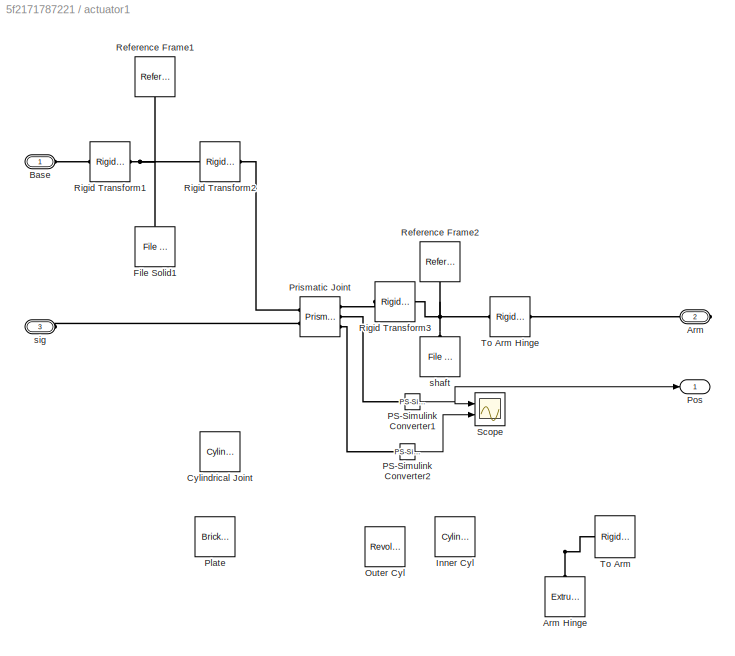
BLOCK [SubSystem] actuator1
  Commented = on
  Ports = [0, 1, 0, 0, 0, 2, 1]
  RequestExecContextInheritance = off
BLOCK [PMIOPort] actuator1/Arm
  Port = 2
  Side = Right
BLOCK [Reference] actuator1/Arm Hinge  REF=sm_lib/Body Elements/Extruded Solid
  Commented = on
  Ports = [0, 0, 0, 0, 0, 0, 1]
  SourceBlock = sm_lib/Body Elements/Extruded Solid
  SourceProductBaseCode = MS
  SourceType = Extruded Solid
BLOCK [PMIOPort] actuator1/Base
  Side = Left
BLOCK [Reference] actuator1/Cylindrical Joint  REF=sm_lib/Joints/Cylindrical
Joint
  Commented = on
  Ports = [0, 0, 0, 0, 0, 2, 1]
  SourceBlock = sm_lib/Joints/Cylindrical\nJoint
  SourceProductBaseCode = MS
  SourceType = Cylindrical\nJoint
BLOCK [Reference] actuator1/File Solid1  REF=sm_lib/Body Elements/File Solid
  NameLocation = right
  Ports = [0, 0, 0, 0, 0, 0, 1]
  SourceBlock = sm_lib/Body Elements/File Solid
  SourceProductBaseCode = MS
  SourceType = File Solid
BLOCK [Reference] actuator1/Inner Cyl  REF=sm_lib/Body Elements/Cylindrical Solid
  Commented = on
  Ports = [0, 0, 0, 0, 0, 1, 1]
  SourceBlock = sm_lib/Body Elements/Cylindrical Solid
  SourceProductBaseCode = MS
  SourceType = Cylindrical Solid
BLOCK [Reference] actuator1/Outer Cyl  REF=sm_lib/Body Elements/Revolved Solid
  Commented = on
  Ports = [0, 0, 0, 0, 0, 1, 1]
  SourceBlock = sm_lib/Body Elements/Revolved Solid
  SourceProductBaseCode = MS
  SourceType = Revolved Solid
BLOCK [Reference] actuator1/PS-Simulink Converter1  REF=nesl_utility/PS-Simulink
Converter
  Ports = [0, 1, 0, 0, 0, 1]
  SourceBlock = nesl_utility/PS-Simulink\nConverter
  SourceProductBaseCode = PW,SS
  SourceType = PS-Simulink\nConverter
BLOCK [Reference] actuator1/PS-Simulink Converter2  REF=nesl_utility/PS-Simulink
Converter
  Ports = [0, 1, 0, 0, 0, 1]
  SourceBlock = nesl_utility/PS-Simulink\nConverter
  SourceProductBaseCode = PW,SS
  SourceType = PS-Simulink\nConverter
BLOCK [Reference] actuator1/Plate  REF=sm_lib/Body Elements/Brick Solid
  Commented = on
  Ports = [0, 0, 0, 0, 0, 1, 1]
  SourceBlock = sm_lib/Body Elements/Brick Solid
  SourceProductBaseCode = MS
  SourceType = Brick Solid
BLOCK [Outport] actuator1/Pos
BLOCK [Reference] actuator1/Prismatic Joint  REF=sm_lib/Joints/Prismatic
Joint
  Ports = [0, 0, 0, 0, 0, 2, 3]
  SourceBlock = sm_lib/Joints/Prismatic\nJoint
  SourceProductBaseCode = MS
  SourceType = Prismatic\nJoint
BLOCK [Reference] actuator1/Reference Frame1  REF=sm_lib/Frames and
Transforms/Reference
Frame
  NameLocation = left
  Ports = [0, 0, 0, 0, 0, 0, 1]
  SourceBlock = sm_lib/Frames and\nTransforms/Reference\nFrame
  SourceProductBaseCode = MS
  SourceType = Reference\nFrame
BLOCK [Reference] actuator1/Reference Frame2  REF=sm_lib/Frames and
Transforms/Reference
Frame
  NameLocation = left
  Ports = [0, 0, 0, 0, 0, 0, 1]
  SourceBlock = sm_lib/Frames and\nTransforms/Reference\nFrame
  SourceProductBaseCode = MS
  SourceType = Reference\nFrame
BLOCK [Reference] actuator1/Rigid Transform1  REF=sm_lib/Frames and
Transforms/Rigid
Transform
  NameLocation = top
  Ports = [0, 0, 0, 0, 0, 1, 1]
  SourceBlock = sm_lib/Frames and\nTransforms/Rigid\nTransform
  SourceProductBaseCode = MS
  SourceType = Rigid\nTransform
BLOCK [Reference] actuator1/Rigid Transform2  REF=sm_lib/Frames and
Transforms/Rigid
Transform
  Ports = [0, 0, 0, 0, 0, 1, 1]
  SourceBlock = sm_lib/Frames and\nTransforms/Rigid\nTransform
  SourceProductBaseCode = MS
  SourceType = Rigid\nTransform
BLOCK [Reference] actuator1/Rigid Transform3  REF=sm_lib/Frames and
Transforms/Rigid
Transform
  NameLocation = top
  Ports = [0, 0, 0, 0, 0, 1, 1]
  SourceBlock = sm_lib/Frames and\nTransforms/Rigid\nTransform
  SourceProductBaseCode = MS
  SourceType = Rigid\nTransform
BLOCK [Scope] actuator1/Scope
  Floating = off
  NumInputPorts = 2
  Ports = [2]
  ScopeSpecificationString = Simulink.scopes.TimeScopeBlockCfg('CurrentConfiguration', extmgr.ConfigurationSet(extmgr.Configuration('Core','General UI',true),extmgr.Configuration('Core','Source UI',true),extmgr.Configuration('Sources','WiredSimulink',true,'DataLoggingVariableName','ScopeData1'),extmgr.Configuration('Visuals','Time Domain',true),extmgr.Configuration('Tools','Plot Navigation',true),extmgr.Configuration('Tools',...<+40ch>  <repeated x8 — deduplicated; at blocks: Scope>
BLOCK [Reference] actuator1/To Arm  REF=sm_lib/Frames and
Transforms/Rigid
Transform
  Commented = on
  Ports = [0, 0, 0, 0, 0, 1, 1]
  SourceBlock = sm_lib/Frames and\nTransforms/Rigid\nTransform
  SourceProductBaseCode = MS
  SourceType = Rigid\nTransform
BLOCK [Reference] actuator1/To Arm Hinge  REF=sm_lib/Frames and
Transforms/Rigid
Transform
  Ports = [0, 0, 0, 0, 0, 1, 1]
  SourceBlock = sm_lib/Frames and\nTransforms/Rigid\nTransform
  SourceProductBaseCode = MS
  SourceType = Rigid\nTransform
BLOCK [Reference] actuator1/shaft  REF=sm_lib/Body Elements/File Solid
  NameLocation = right
  Ports = [0, 0, 0, 0, 0, 0, 1]
  SourceBlock = sm_lib/Body Elements/File Solid
  SourceProductBaseCode = MS
  SourceType = File Solid
BLOCK [PMIOPort] actuator1/sig
  Port = 3
  Side = Left
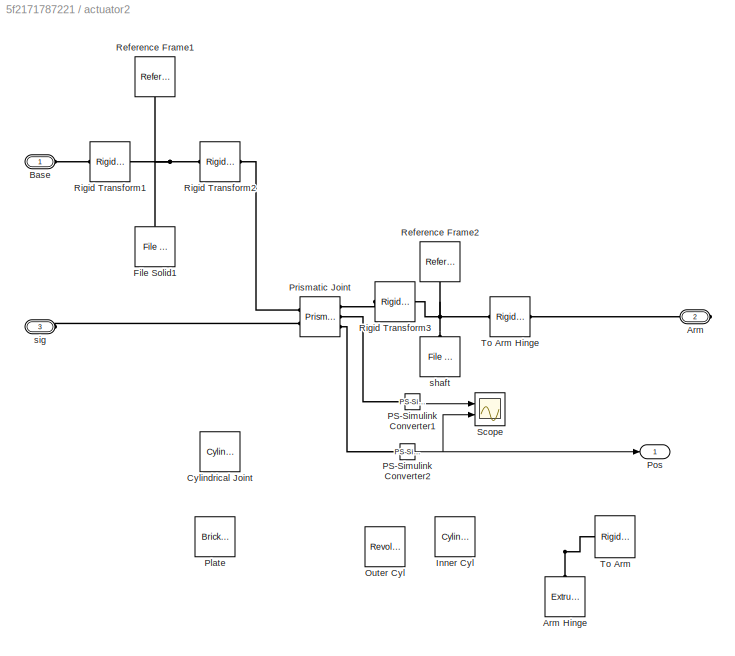
BLOCK [SubSystem] actuator2
  Commented = on
  Ports = [0, 1, 0, 0, 0, 2, 1]
  RequestExecContextInheritance = off
BLOCK [PMIOPort] actuator2/Arm
  Port = 2
  Side = Right
BLOCK [Reference] actuator2/Arm Hinge  REF=sm_lib/Body Elements/Extruded Solid
  Commented = on
  Ports = [0, 0, 0, 0, 0, 0, 1]
  SourceBlock = sm_lib/Body Elements/Extruded Solid
  SourceProductBaseCode = MS
  SourceType = Extruded Solid
BLOCK [PMIOPort] actuator2/Base
  Side = Left
BLOCK [Reference] actuator2/Cylindrical Joint  REF=sm_lib/Joints/Cylindrical
Joint
  Commented = on
  Ports = [0, 0, 0, 0, 0, 2, 1]
  SourceBlock = sm_lib/Joints/Cylindrical\nJoint
  SourceProductBaseCode = MS
  SourceType = Cylindrical\nJoint
BLOCK [Reference] actuator2/File Solid1  REF=sm_lib/Body Elements/File Solid
  NameLocation = right
  Ports = [0, 0, 0, 0, 0, 0, 1]
  SourceBlock = sm_lib/Body Elements/File Solid
  SourceProductBaseCode = MS
  SourceType = File Solid
BLOCK [Reference] actuator2/Inner Cyl  REF=sm_lib/Body Elements/Cylindrical Solid
  Commented = on
  Ports = [0, 0, 0, 0, 0, 1, 1]
  SourceBlock = sm_lib/Body Elements/Cylindrical Solid
  SourceProductBaseCode = MS
  SourceType = Cylindrical Solid
BLOCK [Reference] actuator2/Outer Cyl  REF=sm_lib/Body Elements/Revolved Solid
  Commented = on
  Ports = [0, 0, 0, 0, 0, 1, 1]
  SourceBlock = sm_lib/Body Elements/Revolved Solid
  SourceProductBaseCode = MS
  SourceType = Revolved Solid
BLOCK [Reference] actuator2/PS-Simulink Converter1  REF=nesl_utility/PS-Simulink
Converter
  Ports = [0, 1, 0, 0, 0, 1]
  SourceBlock = nesl_utility/PS-Simulink\nConverter
  SourceProductBaseCode = PW,SS
  SourceType = PS-Simulink\nConverter
BLOCK [Reference] actuator2/PS-Simulink Converter2  REF=nesl_utility/PS-Simulink
Converter
  Ports = [0, 1, 0, 0, 0, 1]
  SourceBlock = nesl_utility/PS-Simulink\nConverter
  SourceProductBaseCode = PW,SS
  SourceType = PS-Simulink\nConverter
BLOCK [Reference] actuator2/Plate  REF=sm_lib/Body Elements/Brick Solid
  Commented = on
  Ports = [0, 0, 0, 0, 0, 1, 1]
  SourceBlock = sm_lib/Body Elements/Brick Solid
  SourceProductBaseCode = MS
  SourceType = Brick Solid
BLOCK [Outport] actuator2/Pos
BLOCK [Reference] actuator2/Prismatic Joint  REF=sm_lib/Joints/Prismatic
Joint
  Ports = [0, 0, 0, 0, 0, 2, 3]
  SourceBlock = sm_lib/Joints/Prismatic\nJoint
  SourceProductBaseCode = MS
  SourceType = Prismatic\nJoint
BLOCK [Reference] actuator2/Reference Frame1  REF=sm_lib/Frames and
Transforms/Reference
Frame
  NameLocation = left
  Ports = [0, 0, 0, 0, 0, 0, 1]
  SourceBlock = sm_lib/Frames and\nTransforms/Reference\nFrame
  SourceProductBaseCode = MS
  SourceType = Reference\nFrame
BLOCK [Reference] actuator2/Reference Frame2  REF=sm_lib/Frames and
Transforms/Reference
Frame
  NameLocation = left
  Ports = [0, 0, 0, 0, 0, 0, 1]
  SourceBlock = sm_lib/Frames and\nTransforms/Reference\nFrame
  SourceProductBaseCode = MS
  SourceType = Reference\nFrame
BLOCK [Reference] actuator2/Rigid Transform1  REF=sm_lib/Frames and
Transforms/Rigid
Transform
  NameLocation = top
  Ports = [0, 0, 0, 0, 0, 1, 1]
  SourceBlock = sm_lib/Frames and\nTransforms/Rigid\nTransform
  SourceProductBaseCode = MS
  SourceType = Rigid\nTransform
BLOCK [Reference] actuator2/Rigid Transform2  REF=sm_lib/Frames and
Transforms/Rigid
Transform
  Ports = [0, 0, 0, 0, 0, 1, 1]
  SourceBlock = sm_lib/Frames and\nTransforms/Rigid\nTransform
  SourceProductBaseCode = MS
  SourceType = Rigid\nTransform
BLOCK [Reference] actuator2/Rigid Transform3  REF=sm_lib/Frames and
Transforms/Rigid
Transform
  NameLocation = top
  Ports = [0, 0, 0, 0, 0, 1, 1]
  SourceBlock = sm_lib/Frames and\nTransforms/Rigid\nTransform
  SourceProductBaseCode = MS
  SourceType = Rigid\nTransform
BLOCK [Scope] actuator2/Scope
  Floating = off
  NumInputPorts = 2
  Ports = [2]
BLOCK [Reference] actuator2/To Arm  REF=sm_lib/Frames and
Transforms/Rigid
Transform
  Commented = on
  Ports = [0, 0, 0, 0, 0, 1, 1]
  SourceBlock = sm_lib/Frames and\nTransforms/Rigid\nTransform
  SourceProductBaseCode = MS
  SourceType = Rigid\nTransform
BLOCK [Reference] actuator2/To Arm Hinge  REF=sm_lib/Frames and
Transforms/Rigid
Transform
  Ports = [0, 0, 0, 0, 0, 1, 1]
  SourceBlock = sm_lib/Frames and\nTransforms/Rigid\nTransform
  SourceProductBaseCode = MS
  SourceType = Rigid\nTransform
BLOCK [Reference] actuator2/shaft  REF=sm_lib/Body Elements/File Solid
  NameLocation = right
  Ports = [0, 0, 0, 0, 0, 0, 1]
  SourceBlock = sm_lib/Body Elements/File Solid
  SourceProductBaseCode = MS
  SourceType = File Solid
BLOCK [PMIOPort] actuator2/sig
  Port = 3
  Side = Left
BLOCK [SubSystem] actuator3
  Commented = on
  Ports = [0, 1, 0, 0, 0, 2, 1]
  RequestExecContextInheritance = off
BLOCK [PMIOPort] actuator3/Arm
  Port = 2
  Side = Right
BLOCK [Reference] actuator3/Arm Hinge  REF=sm_lib/Body Elements/Extruded Solid
  Commented = on
  Ports = [0, 0, 0, 0, 0, 0, 1]
  SourceBlock = sm_lib/Body Elements/Extruded Solid
  SourceProductBaseCode = MS
  SourceType = Extruded Solid
BLOCK [PMIOPort] actuator3/Base
  Side = Left
BLOCK [Reference] actuator3/Cylindrical Joint  REF=sm_lib/Joints/Cylindrical
Joint
  Commented = on
  Ports = [0, 0, 0, 0, 0, 2, 1]
  SourceBlock = sm_lib/Joints/Cylindrical\nJoint
  SourceProductBaseCode = MS
  SourceType = Cylindrical\nJoint
BLOCK [Reference] actuator3/File Solid1  REF=sm_lib/Body Elements/File Solid
  NameLocation = right
  Ports = [0, 0, 0, 0, 0, 0, 1]
  SourceBlock = sm_lib/Body Elements/File Solid
  SourceProductBaseCode = MS
  SourceType = File Solid
BLOCK [Reference] actuator3/Inner Cyl  REF=sm_lib/Body Elements/Cylindrical Solid
  Commented = on
  Ports = [0, 0, 0, 0, 0, 1, 1]
  SourceBlock = sm_lib/Body Elements/Cylindrical Solid
  SourceProductBaseCode = MS
  SourceType = Cylindrical Solid
BLOCK [Reference] actuator3/Outer Cyl  REF=sm_lib/Body Elements/Revolved Solid
  Commented = on
  Ports = [0, 0, 0, 0, 0, 1, 1]
  SourceBlock = sm_lib/Body Elements/Revolved Solid
  SourceProductBaseCode = MS
  SourceType = Revolved Solid
BLOCK [Reference] actuator3/PS-Simulink Converter1  REF=nesl_utility/PS-Simulink
Converter
  Ports = [0, 1, 0, 0, 0, 1]
  SourceBlock = nesl_utility/PS-Simulink\nConverter
  SourceProductBaseCode = PW,SS
  SourceType = PS-Simulink\nConverter
BLOCK [Reference] actuator3/PS-Simulink Converter2  REF=nesl_utility/PS-Simulink
Converter
  Ports = [0, 1, 0, 0, 0, 1]
  SourceBlock = nesl_utility/PS-Simulink\nConverter
  SourceProductBaseCode = PW,SS
  SourceType = PS-Simulink\nConverter
BLOCK [Reference] actuator3/Plate  REF=sm_lib/Body Elements/Brick Solid
  Commented = on
  Ports = [0, 0, 0, 0, 0, 1, 1]
  SourceBlock = sm_lib/Body Elements/Brick Solid
  SourceProductBaseCode = MS
  SourceType = Brick Solid
BLOCK [Outport] actuator3/Pos
BLOCK [Reference] actuator3/Prismatic Joint  REF=sm_lib/Joints/Prismatic
Joint
  Ports = [0, 0, 0, 0, 0, 2, 3]
  SourceBlock = sm_lib/Joints/Prismatic\nJoint
  SourceProductBaseCode = MS
  SourceType = Prismatic\nJoint
BLOCK [Reference] actuator3/Reference Frame1  REF=sm_lib/Frames and
Transforms/Reference
Frame
  NameLocation = left
  Ports = [0, 0, 0, 0, 0, 0, 1]
  SourceBlock = sm_lib/Frames and\nTransforms/Reference\nFrame
  SourceProductBaseCode = MS
  SourceType = Reference\nFrame
BLOCK [Reference] actuator3/Reference Frame2  REF=sm_lib/Frames and
Transforms/Reference
Frame
  NameLocation = left
  Ports = [0, 0, 0, 0, 0, 0, 1]
  SourceBlock = sm_lib/Frames and\nTransforms/Reference\nFrame
  SourceProductBaseCode = MS
  SourceType = Reference\nFrame
BLOCK [Reference] actuator3/Rigid Transform1  REF=sm_lib/Frames and
Transforms/Rigid
Transform
  NameLocation = top
  Ports = [0, 0, 0, 0, 0, 1, 1]
  SourceBlock = sm_lib/Frames and\nTransforms/Rigid\nTransform
  SourceProductBaseCode = MS
  SourceType = Rigid\nTransform
BLOCK [Reference] actuator3/Rigid Transform2  REF=sm_lib/Frames and
Transforms/Rigid
Transform
  Ports = [0, 0, 0, 0, 0, 1, 1]
  SourceBlock = sm_lib/Frames and\nTransforms/Rigid\nTransform
  SourceProductBaseCode = MS
  SourceType = Rigid\nTransform
BLOCK [Reference] actuator3/Rigid Transform3  REF=sm_lib/Frames and
Transforms/Rigid
Transform
  NameLocation = top
  Ports = [0, 0, 0, 0, 0, 1, 1]
  SourceBlock = sm_lib/Frames and\nTransforms/Rigid\nTransform
  SourceProductBaseCode = MS
  SourceType = Rigid\nTransform
BLOCK [Scope] actuator3/Scope
  Floating = off
  NumInputPorts = 2
  Ports = [2]
BLOCK [Reference] actuator3/To Arm  REF=sm_lib/Frames and
Transforms/Rigid
Transform
  Commented = on
  Ports = [0, 0, 0, 0, 0, 1, 1]
  SourceBlock = sm_lib/Frames and\nTransforms/Rigid\nTransform
  SourceProductBaseCode = MS
  SourceType = Rigid\nTransform
BLOCK [Reference] actuator3/To Arm Hinge  REF=sm_lib/Frames and
Transforms/Rigid
Transform
  Ports = [0, 0, 0, 0, 0, 1, 1]
  SourceBlock = sm_lib/Frames and\nTransforms/Rigid\nTransform
  SourceProductBaseCode = MS
  SourceType = Rigid\nTransform
BLOCK [Reference] actuator3/shaft  REF=sm_lib/Body Elements/File Solid
  NameLocation = right
  Ports = [0, 0, 0, 0, 0, 0, 1]
  SourceBlock = sm_lib/Body Elements/File Solid
  SourceProductBaseCode = MS
  SourceType = File Solid
BLOCK [PMIOPort] actuator3/sig
  Port = 3
  Side = Left
BLOCK [SubSystem] actuator4
  Commented = on
  Ports = [0, 1, 0, 0, 0, 2, 1]
  RequestExecContextInheritance = off
BLOCK [PMIOPort] actuator4/Arm
  Port = 2
  Side = Right
BLOCK [Reference] actuator4/Arm Hinge  REF=sm_lib/Body Elements/Extruded Solid
  Commented = on
  Ports = [0, 0, 0, 0, 0, 0, 1]
  SourceBlock = sm_lib/Body Elements/Extruded Solid
  SourceProductBaseCode = MS
  SourceType = Extruded Solid
BLOCK [PMIOPort] actuator4/Base
  Side = Left
BLOCK [Reference] actuator4/Cylindrical Joint  REF=sm_lib/Joints/Cylindrical
Joint
  Commented = on
  Ports = [0, 0, 0, 0, 0, 2, 1]
  SourceBlock = sm_lib/Joints/Cylindrical\nJoint
  SourceProductBaseCode = MS
  SourceType = Cylindrical\nJoint
BLOCK [Reference] actuator4/File Solid1  REF=sm_lib/Body Elements/File Solid
  NameLocation = right
  Ports = [0, 0, 0, 0, 0, 0, 1]
  SourceBlock = sm_lib/Body Elements/File Solid
  SourceProductBaseCode = MS
  SourceType = File Solid
BLOCK [Reference] actuator4/Inner Cyl  REF=sm_lib/Body Elements/Cylindrical Solid
  Commented = on
  Ports = [0, 0, 0, 0, 0, 1, 1]
  SourceBlock = sm_lib/Body Elements/Cylindrical Solid
  SourceProductBaseCode = MS
  SourceType = Cylindrical Solid
BLOCK [Reference] actuator4/Outer Cyl  REF=sm_lib/Body Elements/Revolved Solid
  Commented = on
  Ports = [0, 0, 0, 0, 0, 1, 1]
  SourceBlock = sm_lib/Body Elements/Revolved Solid
  SourceProductBaseCode = MS
  SourceType = Revolved Solid
BLOCK [Reference] actuator4/PS-Simulink Converter1  REF=nesl_utility/PS-Simulink
Converter
  Ports = [0, 1, 0, 0, 0, 1]
  SourceBlock = nesl_utility/PS-Simulink\nConverter
  SourceProductBaseCode = PW,SS
  SourceType = PS-Simulink\nConverter
BLOCK [Reference] actuator4/PS-Simulink Converter2  REF=nesl_utility/PS-Simulink
Converter
  Ports = [0, 1, 0, 0, 0, 1]
  SourceBlock = nesl_utility/PS-Simulink\nConverter
  SourceProductBaseCode = PW,SS
  SourceType = PS-Simulink\nConverter
BLOCK [Reference] actuator4/Plate  REF=sm_lib/Body Elements/Brick Solid
  Commented = on
  Ports = [0, 0, 0, 0, 0, 1, 1]
  SourceBlock = sm_lib/Body Elements/Brick Solid
  SourceProductBaseCode = MS
  SourceType = Brick Solid
BLOCK [Outport] actuator4/Pos
BLOCK [Reference] actuator4/Prismatic Joint  REF=sm_lib/Joints/Prismatic
Joint
  Ports = [0, 0, 0, 0, 0, 2, 3]
  SourceBlock = sm_lib/Joints/Prismatic\nJoint
  SourceProductBaseCode = MS
  SourceType = Prismatic\nJoint
BLOCK [Reference] actuator4/Reference Frame1  REF=sm_lib/Frames and
Transforms/Reference
Frame
  NameLocation = left
  Ports = [0, 0, 0, 0, 0, 0, 1]
  SourceBlock = sm_lib/Frames and\nTransforms/Reference\nFrame
  SourceProductBaseCode = MS
  SourceType = Reference\nFrame
BLOCK [Reference] actuator4/Reference Frame2  REF=sm_lib/Frames and
Transforms/Reference
Frame
  NameLocation = left
  Ports = [0, 0, 0, 0, 0, 0, 1]
  SourceBlock = sm_lib/Frames and\nTransforms/Reference\nFrame
  SourceProductBaseCode = MS
  SourceType = Reference\nFrame
BLOCK [Reference] actuator4/Rigid Transform1  REF=sm_lib/Frames and
Transforms/Rigid
Transform
  NameLocation = top
  Ports = [0, 0, 0, 0, 0, 1, 1]
  SourceBlock = sm_lib/Frames and\nTransforms/Rigid\nTransform
  SourceProductBaseCode = MS
  SourceType = Rigid\nTransform
BLOCK [Reference] actuator4/Rigid Transform2  REF=sm_lib/Frames and
Transforms/Rigid
Transform
  Ports = [0, 0, 0, 0, 0, 1, 1]
  SourceBlock = sm_lib/Frames and\nTransforms/Rigid\nTransform
  SourceProductBaseCode = MS
  SourceType = Rigid\nTransform
BLOCK [Reference] actuator4/Rigid Transform3  REF=sm_lib/Frames and
Transforms/Rigid
Transform
  NameLocation = top
  Ports = [0, 0, 0, 0, 0, 1, 1]
  SourceBlock = sm_lib/Frames and\nTransforms/Rigid\nTransform
  SourceProductBaseCode = MS
  SourceType = Rigid\nTransform
BLOCK [Scope] actuator4/Scope
  Floating = off
  NumInputPorts = 2
  Ports = [2]
BLOCK [Reference] actuator4/To Arm  REF=sm_lib/Frames and
Transforms/Rigid
Transform
  Commented = on
  Ports = [0, 0, 0, 0, 0, 1, 1]
  SourceBlock = sm_lib/Frames and\nTransforms/Rigid\nTransform
  SourceProductBaseCode = MS
  SourceType = Rigid\nTransform
BLOCK [Reference] actuator4/To Arm Hinge  REF=sm_lib/Frames and
Transforms/Rigid
Transform
  Ports = [0, 0, 0, 0, 0, 1, 1]
  SourceBlock = sm_lib/Frames and\nTransforms/Rigid\nTransform
  SourceProductBaseCode = MS
  SourceType = Rigid\nTransform
BLOCK [Reference] actuator4/shaft  REF=sm_lib/Body Elements/File Solid
  NameLocation = right
  Ports = [0, 0, 0, 0, 0, 0, 1]
  SourceBlock = sm_lib/Body Elements/File Solid
  SourceProductBaseCode = MS
  SourceType = File Solid
BLOCK [PMIOPort] actuator4/sig
  Port = 3
  Side = Left
BLOCK [SubSystem] actuator5
  Commented = on
  Ports = [0, 1, 0, 0, 0, 2, 1]
  RequestExecContextInheritance = off
BLOCK [PMIOPort] actuator5/Arm
  Port = 2
  Side = Right
BLOCK [Reference] actuator5/Arm Hinge  REF=sm_lib/Body Elements/Extruded Solid
  Commented = on
  Ports = [0, 0, 0, 0, 0, 0, 1]
  SourceBlock = sm_lib/Body Elements/Extruded Solid
  SourceProductBaseCode = MS
  SourceType = Extruded Solid
BLOCK [PMIOPort] actuator5/Base
  Side = Left
BLOCK [Reference] actuator5/Cylindrical Joint  REF=sm_lib/Joints/Cylindrical
Joint
  Commented = on
  Ports = [0, 0, 0, 0, 0, 2, 1]
  SourceBlock = sm_lib/Joints/Cylindrical\nJoint
  SourceProductBaseCode = MS
  SourceType = Cylindrical\nJoint
BLOCK [Reference] actuator5/File Solid1  REF=sm_lib/Body Elements/File Solid
  NameLocation = right
  Ports = [0, 0, 0, 0, 0, 0, 1]
  SourceBlock = sm_lib/Body Elements/File Solid
  SourceProductBaseCode = MS
  SourceType = File Solid
BLOCK [Reference] actuator5/Inner Cyl  REF=sm_lib/Body Elements/Cylindrical Solid
  Commented = on
  Ports = [0, 0, 0, 0, 0, 1, 1]
  SourceBlock = sm_lib/Body Elements/Cylindrical Solid
  SourceProductBaseCode = MS
  SourceType = Cylindrical Solid
BLOCK [Reference] actuator5/Outer Cyl  REF=sm_lib/Body Elements/Revolved Solid
  Commented = on
  Ports = [0, 0, 0, 0, 0, 1, 1]
  SourceBlock = sm_lib/Body Elements/Revolved Solid
  SourceProductBaseCode = MS
  SourceType = Revolved Solid
BLOCK [Reference] actuator5/PS-Simulink Converter1  REF=nesl_utility/PS-Simulink
Converter
  Ports = [0, 1, 0, 0, 0, 1]
  SourceBlock = nesl_utility/PS-Simulink\nConverter
  SourceProductBaseCode = PW,SS
  SourceType = PS-Simulink\nConverter
BLOCK [Reference] actuator5/PS-Simulink Converter2  REF=nesl_utility/PS-Simulink
Converter
  Ports = [0, 1, 0, 0, 0, 1]
  SourceBlock = nesl_utility/PS-Simulink\nConverter
  SourceProductBaseCode = PW,SS
  SourceType = PS-Simulink\nConverter
BLOCK [Reference] actuator5/Plate  REF=sm_lib/Body Elements/Brick Solid
  Commented = on
  Ports = [0, 0, 0, 0, 0, 1, 1]
  SourceBlock = sm_lib/Body Elements/Brick Solid
  SourceProductBaseCode = MS
  SourceType = Brick Solid
BLOCK [Outport] actuator5/Pos
BLOCK [Reference] actuator5/Prismatic Joint  REF=sm_lib/Joints/Prismatic
Joint
  Ports = [0, 0, 0, 0, 0, 2, 3]
  SourceBlock = sm_lib/Joints/Prismatic\nJoint
  SourceProductBaseCode = MS
  SourceType = Prismatic\nJoint
BLOCK [Reference] actuator5/Reference Frame1  REF=sm_lib/Frames and
Transforms/Reference
Frame
  NameLocation = left
  Ports = [0, 0, 0, 0, 0, 0, 1]
  SourceBlock = sm_lib/Frames and\nTransforms/Reference\nFrame
  SourceProductBaseCode = MS
  SourceType = Reference\nFrame
BLOCK [Reference] actuator5/Reference Frame2  REF=sm_lib/Frames and
Transforms/Reference
Frame
  NameLocation = left
  Ports = [0, 0, 0, 0, 0, 0, 1]
  SourceBlock = sm_lib/Frames and\nTransforms/Reference\nFrame
  SourceProductBaseCode = MS
  SourceType = Reference\nFrame
BLOCK [Reference] actuator5/Rigid Transform1  REF=sm_lib/Frames and
Transforms/Rigid
Transform
  NameLocation = top
  Ports = [0, 0, 0, 0, 0, 1, 1]
  SourceBlock = sm_lib/Frames and\nTransforms/Rigid\nTransform
  SourceProductBaseCode = MS
  SourceType = Rigid\nTransform
BLOCK [Reference] actuator5/Rigid Transform2  REF=sm_lib/Frames and
Transforms/Rigid
Transform
  Ports = [0, 0, 0, 0, 0, 1, 1]
  SourceBlock = sm_lib/Frames and\nTransforms/Rigid\nTransform
  SourceProductBaseCode = MS
  SourceType = Rigid\nTransform
BLOCK [Reference] actuator5/Rigid Transform3  REF=sm_lib/Frames and
Transforms/Rigid
Transform
  NameLocation = top
  Ports = [0, 0, 0, 0, 0, 1, 1]
  SourceBlock = sm_lib/Frames and\nTransforms/Rigid\nTransform
  SourceProductBaseCode = MS
  SourceType = Rigid\nTransform
BLOCK [Scope] actuator5/Scope
  Floating = off
  NumInputPorts = 2
  Ports = [2]
BLOCK [Reference] actuator5/To Arm  REF=sm_lib/Frames and
Transforms/Rigid
Transform
  Commented = on
  Ports = [0, 0, 0, 0, 0, 1, 1]
  SourceBlock = sm_lib/Frames and\nTransforms/Rigid\nTransform
  SourceProductBaseCode = MS
  SourceType = Rigid\nTransform
BLOCK [Reference] actuator5/shaft  REF=sm_lib/Body Elements/File Solid
  NameLocation = right
  Ports = [0, 0, 0, 0, 0, 0, 1]
  SourceBlock = sm_lib/Body Elements/File Solid
  SourceProductBaseCode = MS
  SourceType = File Solid
BLOCK [PMIOPort] actuator5/sig
  Port = 3
  Side = Left
BLOCK [SubSystem] actuator6
  Commented = on
  Ports = [0, 1, 0, 0, 0, 2, 1]
  RequestExecContextInheritance = off
BLOCK [PMIOPort] actuator6/Arm
  Port = 2
  Side = Right
BLOCK [Reference] actuator6/Arm Hinge  REF=sm_lib/Body Elements/Extruded Solid
  Commented = on
  Ports = [0, 0, 0, 0, 0, 0, 1]
  SourceBlock = sm_lib/Body Elements/Extruded Solid
  SourceProductBaseCode = MS
  SourceType = Extruded Solid
BLOCK [PMIOPort] actuator6/Base
  Side = Left
BLOCK [Reference] actuator6/Cylindrical Joint  REF=sm_lib/Joints/Cylindrical
Joint
  Commented = on
  Ports = [0, 0, 0, 0, 0, 2, 1]
  SourceBlock = sm_lib/Joints/Cylindrical\nJoint
  SourceProductBaseCode = MS
  SourceType = Cylindrical\nJoint
BLOCK [Reference] actuator6/File Solid1  REF=sm_lib/Body Elements/File Solid
  NameLocation = right
  Ports = [0, 0, 0, 0, 0, 0, 1]
  SourceBlock = sm_lib/Body Elements/File Solid
  SourceProductBaseCode = MS
  SourceType = File Solid
BLOCK [Reference] actuator6/Inner Cyl  REF=sm_lib/Body Elements/Cylindrical Solid
  Commented = on
  Ports = [0, 0, 0, 0, 0, 1, 1]
  SourceBlock = sm_lib/Body Elements/Cylindrical Solid
  SourceProductBaseCode = MS
  SourceType = Cylindrical Solid
BLOCK [Reference] actuator6/Outer Cyl  REF=sm_lib/Body Elements/Revolved Solid
  Commented = on
  Ports = [0, 0, 0, 0, 0, 1, 1]
  SourceBlock = sm_lib/Body Elements/Revolved Solid
  SourceProductBaseCode = MS
  SourceType = Revolved Solid
BLOCK [Reference] actuator6/PS-Simulink Converter1  REF=nesl_utility/PS-Simulink
Converter
  Ports = [0, 1, 0, 0, 0, 1]
  SourceBlock = nesl_utility/PS-Simulink\nConverter
  SourceProductBaseCode = PW,SS
  SourceType = PS-Simulink\nConverter
BLOCK [Reference] actuator6/PS-Simulink Converter2  REF=nesl_utility/PS-Simulink
Converter
  Ports = [0, 1, 0, 0, 0, 1]
  SourceBlock = nesl_utility/PS-Simulink\nConverter
  SourceProductBaseCode = PW,SS
  SourceType = PS-Simulink\nConverter
BLOCK [Reference] actuator6/Plate  REF=sm_lib/Body Elements/Brick Solid
  Commented = on
  Ports = [0, 0, 0, 0, 0, 1, 1]
  SourceBlock = sm_lib/Body Elements/Brick Solid
  SourceProductBaseCode = MS
  SourceType = Brick Solid
BLOCK [Outport] actuator6/Pos
BLOCK [Reference] actuator6/Prismatic Joint  REF=sm_lib/Joints/Prismatic
Joint
  Ports = [0, 0, 0, 0, 0, 2, 3]
  SourceBlock = sm_lib/Joints/Prismatic\nJoint
  SourceProductBaseCode = MS
  SourceType = Prismatic\nJoint
BLOCK [Reference] actuator6/Reference Frame1  REF=sm_lib/Frames and
Transforms/Reference
Frame
  NameLocation = left
  Ports = [0, 0, 0, 0, 0, 0, 1]
  SourceBlock = sm_lib/Frames and\nTransforms/Reference\nFrame
  SourceProductBaseCode = MS
  SourceType = Reference\nFrame
BLOCK [Reference] actuator6/Reference Frame2  REF=sm_lib/Frames and
Transforms/Reference
Frame
  NameLocation = left
  Ports = [0, 0, 0, 0, 0, 0, 1]
  SourceBlock = sm_lib/Frames and\nTransforms/Reference\nFrame
  SourceProductBaseCode = MS
  SourceType = Reference\nFrame
BLOCK [Reference] actuator6/Rigid Transform1  REF=sm_lib/Frames and
Transforms/Rigid
Transform
  NameLocation = top
  Ports = [0, 0, 0, 0, 0, 1, 1]
  SourceBlock = sm_lib/Frames and\nTransforms/Rigid\nTransform
  SourceProductBaseCode = MS
  SourceType = Rigid\nTransform
BLOCK [Reference] actuator6/Rigid Transform2  REF=sm_lib/Frames and
Transforms/Rigid
Transform
  Ports = [0, 0, 0, 0, 0, 1, 1]
  SourceBlock = sm_lib/Frames and\nTransforms/Rigid\nTransform
  SourceProductBaseCode = MS
  SourceType = Rigid\nTransform
BLOCK [Reference] actuator6/Rigid Transform3  REF=sm_lib/Frames and
Transforms/Rigid
Transform
  NameLocation = top
  Ports = [0, 0, 0, 0, 0, 1, 1]
  SourceBlock = sm_lib/Frames and\nTransforms/Rigid\nTransform
  SourceProductBaseCode = MS
  SourceType = Rigid\nTransform
BLOCK [Scope] actuator6/Scope
  Floating = off
  NumInputPorts = 2
  Ports = [2]
BLOCK [Reference] actuator6/To Arm  REF=sm_lib/Frames and
Transforms/Rigid
Transform
  Commented = on
  Ports = [0, 0, 0, 0, 0, 1, 1]
  SourceBlock = sm_lib/Frames and\nTransforms/Rigid\nTransform
  SourceProductBaseCode = MS
  SourceType = Rigid\nTransform
BLOCK [Reference] actuator6/shaft  REF=sm_lib/Body Elements/File Solid
  NameLocation = right
  Ports = [0, 0, 0, 0, 0, 0, 1]
  SourceBlock = sm_lib/Body Elements/File Solid
  SourceProductBaseCode = MS
  SourceType = File Solid
BLOCK [PMIOPort] actuator6/sig
  Port = 3
  Side = Left
BLOCK [SubSystem] actuator7
  Ports = [0, 1, 0, 0, 0, 2, 1]
  RequestExecContextInheritance = off
BLOCK [PMIOPort] actuator7/Arm
  Port = 2
  Side = Right
BLOCK [Reference] actuator7/Arm Hinge  REF=sm_lib/Body Elements/Extruded Solid
  Commented = on
  Ports = [0, 0, 0, 0, 0, 0, 1]
  SourceBlock = sm_lib/Body Elements/Extruded Solid
  SourceProductBaseCode = MS
  SourceType = Extruded Solid
BLOCK [PMIOPort] actuator7/Base
  Side = Left
BLOCK [Reference] actuator7/Cylindrical Joint  REF=sm_lib/Joints/Cylindrical
Joint
  Commented = on
  Ports = [0, 0, 0, 0, 0, 2, 1]
  SourceBlock = sm_lib/Joints/Cylindrical\nJoint
  SourceProductBaseCode = MS
  SourceType = Cylindrical\nJoint
BLOCK [Reference] actuator7/File Solid1  REF=sm_lib/Body Elements/File Solid
  NameLocation = right
  Ports = [0, 0, 0, 0, 0, 0, 1]
  SourceBlock = sm_lib/Body Elements/File Solid
  SourceProductBaseCode = MS
  SourceType = File Solid
BLOCK [Reference] actuator7/Inner Cyl  REF=sm_lib/Body Elements/Cylindrical Solid
  Commented = on
  Ports = [0, 0, 0, 0, 0, 1, 1]
  SourceBlock = sm_lib/Body Elements/Cylindrical Solid
  SourceProductBaseCode = MS
  SourceType = Cylindrical Solid
BLOCK [Reference] actuator7/Outer Cyl  REF=sm_lib/Body Elements/Revolved Solid
  Commented = on
  Ports = [0, 0, 0, 0, 0, 1, 1]
  SourceBlock = sm_lib/Body Elements/Revolved Solid
  SourceProductBaseCode = MS
  SourceType = Revolved Solid
BLOCK [Reference] actuator7/PS-Simulink Converter1  REF=nesl_utility/PS-Simulink
Converter
  Ports = [0, 1, 0, 0, 0, 1]
  SourceBlock = nesl_utility/PS-Simulink\nConverter
  SourceProductBaseCode = PW,SS
  SourceType = PS-Simulink\nConverter
BLOCK [Reference] actuator7/PS-Simulink Converter2  REF=nesl_utility/PS-Simulink
Converter
  Ports = [0, 1, 0, 0, 0, 1]
  SourceBlock = nesl_utility/PS-Simulink\nConverter
  SourceProductBaseCode = PW,SS
  SourceType = PS-Simulink\nConverter
BLOCK [Reference] actuator7/Plate  REF=sm_lib/Body Elements/Brick Solid
  Commented = on
  Ports = [0, 0, 0, 0, 0, 1, 1]
  SourceBlock = sm_lib/Body Elements/Brick Solid
  SourceProductBaseCode = MS
  SourceType = Brick Solid
BLOCK [Outport] actuator7/Pos
BLOCK [Reference] actuator7/Prismatic Joint  REF=sm_lib/Joints/Prismatic
Joint
  Ports = [0, 0, 0, 0, 0, 2, 3]
  SourceBlock = sm_lib/Joints/Prismatic\nJoint
  SourceProductBaseCode = MS
  SourceType = Prismatic\nJoint
BLOCK [Reference] actuator7/Reference Frame1  REF=sm_lib/Frames and
Transforms/Reference
Frame
  NameLocation = left
  Ports = [0, 0, 0, 0, 0, 0, 1]
  SourceBlock = sm_lib/Frames and\nTransforms/Reference\nFrame
  SourceProductBaseCode = MS
  SourceType = Reference\nFrame
BLOCK [Reference] actuator7/Reference Frame2  REF=sm_lib/Frames and
Transforms/Reference
Frame
  NameLocation = left
  Ports = [0, 0, 0, 0, 0, 0, 1]
  SourceBlock = sm_lib/Frames and\nTransforms/Reference\nFrame
  SourceProductBaseCode = MS
  SourceType = Reference\nFrame
BLOCK [Reference] actuator7/Rigid Transform3  REF=sm_lib/Frames and
Transforms/Rigid
Transform
  Ports = [0, 0, 0, 0, 0, 1, 1]
  SourceBlock = sm_lib/Frames and\nTransforms/Rigid\nTransform
  SourceProductBaseCode = MS
  SourceType = Rigid\nTransform
BLOCK [Scope] actuator7/Scope
  Floating = off
  NumInputPorts = 2
  Ports = [2]
BLOCK [Reference] actuator7/To Arm  REF=sm_lib/Frames and
Transforms/Rigid
Transform
  Commented = on
  Ports = [0, 0, 0, 0, 0, 1, 1]
  SourceBlock = sm_lib/Frames and\nTransforms/Rigid\nTransform
  SourceProductBaseCode = MS
  SourceType = Rigid\nTransform
BLOCK [Reference] actuator7/shaft  REF=sm_lib/Body Elements/File Solid
  NameLocation = right
  Ports = [0, 0, 0, 0, 0, 0, 1]
  SourceBlock = sm_lib/Body Elements/File Solid
  SourceProductBaseCode = MS
  SourceType = File Solid
BLOCK [PMIOPort] actuator7/sig
  Port = 3
  Side = Left
BLOCK [SubSystem] actuator8
  Ports = [0, 1, 0, 0, 0, 2, 1]
  RequestExecContextInheritance = off
BLOCK [PMIOPort] actuator8/Arm
  Port = 2
  Side = Right
BLOCK [Reference] actuator8/Arm Hinge  REF=sm_lib/Body Elements/Extruded Solid
  Commented = on
  Ports = [0, 0, 0, 0, 0, 0, 1]
  SourceBlock = sm_lib/Body Elements/Extruded Solid
  SourceProductBaseCode = MS
  SourceType = Extruded Solid
BLOCK [PMIOPort] actuator8/Base
  Side = Left
BLOCK [Reference] actuator8/Cylindrical Joint  REF=sm_lib/Joints/Cylindrical
Joint
  Commented = on
  Ports = [0, 0, 0, 0, 0, 2, 1]
  SourceBlock = sm_lib/Joints/Cylindrical\nJoint
  SourceProductBaseCode = MS
  SourceType = Cylindrical\nJoint
BLOCK [Reference] actuator8/File Solid1  REF=sm_lib/Body Elements/File Solid
  NameLocation = right
  Ports = [0, 0, 0, 0, 0, 0, 1]
  SourceBlock = sm_lib/Body Elements/File Solid
  SourceProductBaseCode = MS
  SourceType = File Solid
BLOCK [Reference] actuator8/Inner Cyl  REF=sm_lib/Body Elements/Cylindrical Solid
  Commented = on
  Ports = [0, 0, 0, 0, 0, 1, 1]
  SourceBlock = sm_lib/Body Elements/Cylindrical Solid
  SourceProductBaseCode = MS
  SourceType = Cylindrical Solid
BLOCK [Reference] actuator8/Outer Cyl  REF=sm_lib/Body Elements/Revolved Solid
  Commented = on
  Ports = [0, 0, 0, 0, 0, 1, 1]
  SourceBlock = sm_lib/Body Elements/Revolved Solid
  SourceProductBaseCode = MS
  SourceType = Revolved Solid
BLOCK [Reference] actuator8/PS-Simulink Converter1  REF=nesl_utility/PS-Simulink
Converter
  Ports = [0, 1, 0, 0, 0, 1]
  SourceBlock = nesl_utility/PS-Simulink\nConverter
  SourceProductBaseCode = PW,SS
  SourceType = PS-Simulink\nConverter
BLOCK [Reference] actuator8/PS-Simulink Converter2  REF=nesl_utility/PS-Simulink
Converter
  Ports = [0, 1, 0, 0, 0, 1]
  SourceBlock = nesl_utility/PS-Simulink\nConverter
  SourceProductBaseCode = PW,SS
  SourceType = PS-Simulink\nConverter
BLOCK [Reference] actuator8/Plate  REF=sm_lib/Body Elements/Brick Solid
  Commented = on
  Ports = [0, 0, 0, 0, 0, 1, 1]
  SourceBlock = sm_lib/Body Elements/Brick Solid
  SourceProductBaseCode = MS
  SourceType = Brick Solid
BLOCK [Outport] actuator8/Pos
BLOCK [Reference] actuator8/Prismatic Joint  REF=sm_lib/Joints/Prismatic
Joint
  Ports = [0, 0, 0, 0, 0, 2, 3]
  SourceBlock = sm_lib/Joints/Prismatic\nJoint
  SourceProductBaseCode = MS
  SourceType = Prismatic\nJoint
BLOCK [Reference] actuator8/Reference Frame1  REF=sm_lib/Frames and
Transforms/Reference
Frame
  NameLocation = left
  Ports = [0, 0, 0, 0, 0, 0, 1]
  SourceBlock = sm_lib/Frames and\nTransforms/Reference\nFrame
  SourceProductBaseCode = MS
  SourceType = Reference\nFrame
BLOCK [Reference] actuator8/Reference Frame2  REF=sm_lib/Frames and
Transforms/Reference
Frame
  NameLocation = left
  Ports = [0, 0, 0, 0, 0, 0, 1]
  SourceBlock = sm_lib/Frames and\nTransforms/Reference\nFrame
  SourceProductBaseCode = MS
  SourceType = Reference\nFrame
BLOCK [Reference] actuator8/Rigid Transform3  REF=sm_lib/Frames and
Transforms/Rigid
Transform
  Ports = [0, 0, 0, 0, 0, 1, 1]
  SourceBlock = sm_lib/Frames and\nTransforms/Rigid\nTransform
  SourceProductBaseCode = MS
  SourceType = Rigid\nTransform
BLOCK [Scope] actuator8/Scope
  Floating = off
  NumInputPorts = 2
  Ports = [2]
BLOCK [Reference] actuator8/To Arm  REF=sm_lib/Frames and
Transforms/Rigid
Transform
  Commented = on
  Ports = [0, 0, 0, 0, 0, 1, 1]
  SourceBlock = sm_lib/Frames and\nTransforms/Rigid\nTransform
  SourceProductBaseCode = MS
  SourceType = Rigid\nTransform
BLOCK [Reference] actuator8/shaft  REF=sm_lib/Body Elements/File Solid
  NameLocation = right
  Ports = [0, 0, 0, 0, 0, 0, 1]
  SourceBlock = sm_lib/Body Elements/File Solid
  SourceProductBaseCode = MS
  SourceType = File Solid
BLOCK [PMIOPort] actuator8/sig
  Port = 3
  Side = Left
BLOCK [Reference] change to pos control 1  REF=nesl_utility/Simulink-PS
Converter
  Commented = on
  Ports = [1, 0, 0, 0, 0, 0, 1]
  SourceBlock = nesl_utility/Simulink-PS\nConverter
  SourceProductBaseCode = PW,SS
  SourceType = Simulink-PS\nConverter
BLOCK [Reference] change to pos control 2  REF=nesl_utility/Simulink-PS
Converter
  Commented = on
  Ports = [1, 0, 0, 0, 0, 0, 1]
  SourceBlock = nesl_utility/Simulink-PS\nConverter
  SourceProductBaseCode = PW,SS
  SourceType = Simulink-PS\nConverter
BLOCK [Reference] changed to pos control  REF=nesl_utility/Simulink-PS
Converter
  Commented = on
  Ports = [1, 0, 0, 0, 0, 0, 1]
  SourceBlock = nesl_utility/Simulink-PS\nConverter
  SourceProductBaseCode = PW,SS
  SourceType = Simulink-PS\nConverter
BLOCK [Reference] changed to pos control1  REF=nesl_utility/Simulink-PS
Converter
  Commented = on
  Ports = [1, 0, 0, 0, 0, 0, 1]
  SourceBlock = nesl_utility/Simulink-PS\nConverter
  SourceProductBaseCode = PW,SS
  SourceType = Simulink-PS\nConverter
BLOCK [Reference] rotate contact forces  REF=sm_lib/Frames and
Transforms/Rigid
Transform
  Commented = on
  NameLocation = top
  Ports = [0, 0, 0, 0, 0, 1, 1]
  SourceBlock = sm_lib/Frames and\nTransforms/Rigid\nTransform
  SourceProductBaseCode = MS
  SourceType = Rigid\nTransform
BLOCK [Reference] rotate contact forces1  REF=sm_lib/Frames and
Transforms/Rigid
Transform
  Commented = on
  NameLocation = top
  Ports = [0, 0, 0, 0, 0, 1, 1]
  SourceBlock = sm_lib/Frames and\nTransforms/Rigid\nTransform
  SourceProductBaseCode = MS
  SourceType = Rigid\nTransform
BLOCK [Reference] rotate contact forces2  REF=sm_lib/Frames and
Transforms/Rigid
Transform
  Commented = on
  NameLocation = top
  Ports = [0, 0, 0, 0, 0, 1, 1]
  SourceBlock = sm_lib/Frames and\nTransforms/Rigid\nTransform
  SourceProductBaseCode = MS
  SourceType = Rigid\nTransform
BLOCK [Reference] rotate contact forces3  REF=sm_lib/Frames and
Transforms/Rigid
Transform
  Commented = on
  NameLocation = top
  Ports = [0, 0, 0, 0, 0, 1, 1]
  SourceBlock = sm_lib/Frames and\nTransforms/Rigid\nTransform
  SourceProductBaseCode = MS
  SourceType = Rigid\nTransform
BLOCK [Reference] rotate contact forces4  REF=sm_lib/Frames and
Transforms/Rigid
Transform
  NameLocation = top
  Ports = [0, 0, 0, 0, 0, 1, 1]
  SourceBlock = sm_lib/Frames and\nTransforms/Rigid\nTransform
  SourceProductBaseCode = MS
  SourceType = Rigid\nTransform
BLOCK [Reference] rotate for joint 1  REF=sm_lib/Frames and
Transforms/Rigid
Transform
  Commented = on
  NameLocation = top
  Ports = [0, 0, 0, 0, 0, 1, 1]
  SourceBlock = sm_lib/Frames and\nTransforms/Rigid\nTransform
  SourceProductBaseCode = MS
  SourceType = Rigid\nTransform
BLOCK [Reference] rotate for joint 10  REF=sm_lib/Frames and
Transforms/Rigid
Transform
  Commented = on
  NameLocation = top
  Ports = [0, 0, 0, 0, 0, 1, 1]
  SourceBlock = sm_lib/Frames and\nTransforms/Rigid\nTransform
  SourceProductBaseCode = MS
  SourceType = Rigid\nTransform
BLOCK [Reference] rotate for joint 11  REF=sm_lib/Frames and
Transforms/Rigid
Transform
  Commented = on
  NameLocation = top
  Ports = [0, 0, 0, 0, 0, 1, 1]
  SourceBlock = sm_lib/Frames and\nTransforms/Rigid\nTransform
  SourceProductBaseCode = MS
  SourceType = Rigid\nTransform
BLOCK [Reference] rotate for joint 12  REF=sm_lib/Frames and
Transforms/Rigid
Transform
  Commented = on
  Ports = [0, 0, 0, 0, 0, 1, 1]
  SourceBlock = sm_lib/Frames and\nTransforms/Rigid\nTransform
  SourceProductBaseCode = MS
  SourceType = Rigid\nTransform
BLOCK [Reference] rotate for joint 13  REF=sm_lib/Frames and
Transforms/Rigid
Transform
  Commented = on
  NameLocation = top
  Ports = [0, 0, 0, 0, 0, 1, 1]
  SourceBlock = sm_lib/Frames and\nTransforms/Rigid\nTransform
  SourceProductBaseCode = MS
  SourceType = Rigid\nTransform
BLOCK [Reference] rotate for joint 14  REF=sm_lib/Frames and
Transforms/Rigid
Transform
  Commented = on
  Ports = [0, 0, 0, 0, 0, 1, 1]
  SourceBlock = sm_lib/Frames and\nTransforms/Rigid\nTransform
  SourceProductBaseCode = MS
  SourceType = Rigid\nTransform
BLOCK [Reference] rotate for joint 15  REF=sm_lib/Frames and
Transforms/Rigid
Transform
  Commented = on
  Ports = [0, 0, 0, 0, 0, 1, 1]
  SourceBlock = sm_lib/Frames and\nTransforms/Rigid\nTransform
  SourceProductBaseCode = MS
  SourceType = Rigid\nTransform
BLOCK [Reference] rotate for joint 16  REF=sm_lib/Frames and
Transforms/Rigid
Transform
  Commented = on
  NameLocation = top
  Ports = [0, 0, 0, 0, 0, 1, 1]
  SourceBlock = sm_lib/Frames and\nTransforms/Rigid\nTransform
  SourceProductBaseCode = MS
  SourceType = Rigid\nTransform
BLOCK [Reference] rotate for joint 17  REF=sm_lib/Frames and
Transforms/Rigid
Transform
  Commented = on
  Ports = [0, 0, 0, 0, 0, 1, 1]
  SourceBlock = sm_lib/Frames and\nTransforms/Rigid\nTransform
  SourceProductBaseCode = MS
  SourceType = Rigid\nTransform
BLOCK [Reference] rotate for joint 18  REF=sm_lib/Frames and
Transforms/Rigid
Transform
  NameLocation = top
  Ports = [0, 0, 0, 0, 0, 1, 1]
  SourceBlock = sm_lib/Frames and\nTransforms/Rigid\nTransform
  SourceProductBaseCode = MS
  SourceType = Rigid\nTransform
BLOCK [Reference] rotate for joint 19  REF=sm_lib/Frames and
Transforms/Rigid
Transform
  Ports = [0, 0, 0, 0, 0, 1, 1]
  SourceBlock = sm_lib/Frames and\nTransforms/Rigid\nTransform
  SourceProductBaseCode = MS
  SourceType = Rigid\nTransform
BLOCK [Reference] rotate for joint 2  REF=sm_lib/Frames and
Transforms/Rigid
Transform
  Commented = on
  NameLocation = top
  Ports = [0, 0, 0, 0, 0, 1, 1]
  SourceBlock = sm_lib/Frames and\nTransforms/Rigid\nTransform
  SourceProductBaseCode = MS
  SourceType = Rigid\nTransform
BLOCK [Reference] rotate for joint 21  REF=sm_lib/Frames and
Transforms/Rigid
Transform
  Ports = [0, 0, 0, 0, 0, 1, 1]
  SourceBlock = sm_lib/Frames and\nTransforms/Rigid\nTransform
  SourceProductBaseCode = MS
  SourceType = Rigid\nTransform
BLOCK [Reference] rotate for joint 22  REF=sm_lib/Frames and
Transforms/Rigid
Transform
  Ports = [0, 0, 0, 0, 0, 1, 1]
  SourceBlock = sm_lib/Frames and\nTransforms/Rigid\nTransform
  SourceProductBaseCode = MS
  SourceType = Rigid\nTransform
BLOCK [Reference] rotate for joint 23  REF=sm_lib/Frames and
Transforms/Rigid
Transform
  NameLocation = top
  Ports = [0, 0, 0, 0, 0, 1, 1]
  SourceBlock = sm_lib/Frames and\nTransforms/Rigid\nTransform
  SourceProductBaseCode = MS
  SourceType = Rigid\nTransform
BLOCK [Reference] rotate for joint 24  REF=sm_lib/Frames and
Transforms/Rigid
Transform
  Ports = [0, 0, 0, 0, 0, 1, 1]
  SourceBlock = sm_lib/Frames and\nTransforms/Rigid\nTransform
  SourceProductBaseCode = MS
  SourceType = Rigid\nTransform
BLOCK [Reference] rotate for joint 25  REF=sm_lib/Frames and
Transforms/Rigid
Transform
  Ports = [0, 0, 0, 0, 0, 1, 1]
  SourceBlock = sm_lib/Frames and\nTransforms/Rigid\nTransform
  SourceProductBaseCode = MS
  SourceType = Rigid\nTransform
BLOCK [Reference] rotate for joint 3  REF=sm_lib/Frames and
Transforms/Rigid
Transform
  Commented = on
  Ports = [0, 0, 0, 0, 0, 1, 1]
  SourceBlock = sm_lib/Frames and\nTransforms/Rigid\nTransform
  SourceProductBaseCode = MS
  SourceType = Rigid\nTransform
BLOCK [Reference] rotate for joint 4  REF=sm_lib/Frames and
Transforms/Rigid
Transform
  Commented = on
  Ports = [0, 0, 0, 0, 0, 1, 1]
  SourceBlock = sm_lib/Frames and\nTransforms/Rigid\nTransform
  SourceProductBaseCode = MS
  SourceType = Rigid\nTransform
BLOCK [Reference] rotate for joint 5  REF=sm_lib/Frames and
Transforms/Rigid
Transform
  Commented = on
  Ports = [0, 0, 0, 0, 0, 1, 1]
  SourceBlock = sm_lib/Frames and\nTransforms/Rigid\nTransform
  SourceProductBaseCode = MS
  SourceType = Rigid\nTransform
BLOCK [Reference] rotate for joint 6  REF=sm_lib/Frames and
Transforms/Rigid
Transform
  Commented = on
  Ports = [0, 0, 0, 0, 0, 1, 1]
  SourceBlock = sm_lib/Frames and\nTransforms/Rigid\nTransform
  SourceProductBaseCode = MS
  SourceType = Rigid\nTransform
BLOCK [Reference] rotate for joint 7  REF=sm_lib/Frames and
Transforms/Rigid
Transform
  Commented = on
  NameLocation = top
  Ports = [0, 0, 0, 0, 0, 1, 1]
  SourceBlock = sm_lib/Frames and\nTransforms/Rigid\nTransform
  SourceProductBaseCode = MS
  SourceType = Rigid\nTransform
BLOCK [Reference] rotate for joint 8  REF=sm_lib/Frames and
Transforms/Rigid
Transform
  Commented = on
  Ports = [0, 0, 0, 0, 0, 1, 1]
  SourceBlock = sm_lib/Frames and\nTransforms/Rigid\nTransform
  SourceProductBaseCode = MS
  SourceType = Rigid\nTransform
BLOCK [Reference] rotate for joint 9  REF=sm_lib/Frames and
Transforms/Rigid
Transform
  Commented = on
  Ports = [0, 0, 0, 0, 0, 1, 1]
  SourceBlock = sm_lib/Frames and\nTransforms/Rigid\nTransform
  SourceProductBaseCode = MS
  SourceType = Rigid\nTransform
BLOCK [Reference] was 1e-09  REF=nesl_utility/Solver
Configuration
  Commented = on
  Ports = [0, 0, 0, 0, 0, 0, 1]
  SourceBlock = nesl_utility/Solver\nConfiguration
  SourceProductBaseCode = PW,SS
  SourceType = Solver\nConfiguration
BLOCK [Reference] was 1e-1  REF=nesl_utility/Solver
Configuration
  Commented = on
  Ports = [0, 0, 0, 0, 0, 0, 1]
  SourceBlock = nesl_utility/Solver\nConfiguration
  SourceProductBaseCode = PW,SS
  SourceType = Solver\nConfiguration
BLOCK [Reference] z axis coincident1  REF=sm_lib/Joints/Revolute Joint
  Commented = on
  Ports = [0, 0, 0, 0, 0, 1, 3]
  SourceBlock = sm_lib/Joints/Revolute Joint
  SourceProductBaseCode = MS
  SourceType = Revolute Joint
BLOCK [Reference] z axis coincident2  REF=sm_lib/Joints/Revolute Joint
  Commented = on
  Ports = [0, 0, 0, 0, 0, 1, 3]
  SourceBlock = sm_lib/Joints/Revolute Joint
  SourceProductBaseCode = MS
  SourceType = Revolute Joint
BLOCK [Reference] z axis coincident3  REF=sm_lib/Joints/Revolute Joint
  Commented = on
  Ports = [0, 0, 0, 0, 0, 1, 3]
  SourceBlock = sm_lib/Joints/Revolute Joint
  SourceProductBaseCode = MS
  SourceType = Revolute Joint
BLOCK [Reference] z axis coincident4  REF=sm_lib/Joints/Revolute Joint
  Commented = on
  Ports = [0, 0, 0, 0, 0, 1, 3]
  SourceBlock = sm_lib/Joints/Revolute Joint
  SourceProductBaseCode = MS
  SourceType = Revolute Joint
BLOCK [Reference] z axis coincident5  REF=sm_lib/Joints/Revolute Joint
  Commented = on
  Ports = [0, 0, 0, 0, 0, 1, 3]
  SourceBlock = sm_lib/Joints/Revolute Joint
  SourceProductBaseCode = MS
  SourceType = Revolute Joint
BLOCK [Reference] z axis coincident6  REF=sm_lib/Joints/Revolute Joint
  Commented = on
  Ports = [0, 0, 0, 0, 0, 1, 3]
  SourceBlock = sm_lib/Joints/Revolute Joint
  SourceProductBaseCode = MS
  SourceType = Revolute Joint
LINE Bus Selector1:1 -> Contact Force1:1
LINE Bus Selector2:1 -> Contact Force2:1
LINE Bus Selector:1 -> Contact Force:1
LINE Circle to Finite Line1:1 -> Bus Selector1:1
LINE Circle to Finite Line2:1 -> Bus Selector2:1
LINE Circle to Finite Line:1 -> Bus Selector:1
LINE PID Controller1:1 -> change to pos control 1:1
LINE PID Controller2:1 -> changed to pos control1:1
LINE PID Controller3:1 -> change to pos control 2:1
LINE PID Controller4:1 -> changed to pos control:1
LINE PID Controller5:1 -> Simulink-PSConverter5:1
LINE PID Controller6:1 -> Simulink-PSConverter6:1
LINE PID Controller7:1 -> Simulink-PSConverter7:1
LINE PID Controller8:1 -> Simulink-PSConverter8:1
LINE PS-Simulink Converter1:1 -> Scope1:3
LINE PS-Simulink Converter2:1 -> Scope1:2
LINE PS-Simulink Converter3:1 -> Scope1:1
LINE PS-Simulink Converter4:1 -> Scope2:3
LINE PS-Simulink Converter5:1 -> Scope2:2
LINE PS-Simulink Converter6:1 -> Scope2:1
LINE Relay:1 -> Scope:1
LINE Sensing C3/Bus Selector:1 -> Sensing C3/Goto:1
LINE Sensing C3/S:1 -> Sensing C3/Bus Selector:1
LINE Sensing/Mux:1 -> Sensing/Terminator:1
LINE Sensing/PS-Simulink Converter1:1 -> Sensing/Mux:2
LINE Sensing/PS-Simulink Converter2:1 -> Sensing/Mux:1
NET Sensing/PS-Simulink Converter:1 -> Sensing/Mux:3, Sensing/S:1
LINE Sensing1/Mux:1 -> Sensing1/Terminator:1
LINE Sensing1/PS-Simulink Converter1:1 -> Sensing1/Mux:2
LINE Sensing1/PS-Simulink Converter2:1 -> Sensing1/Mux:1
NET Sensing1/PS-Simulink Converter:1 -> Sensing1/Mux:3, Sensing1/S:1
LINE Sensing1:1 -> Ball Height1:1
LINE Sensing2/Mux:1 -> Sensing2/Terminator:1
LINE Sensing2/PS-Simulink Converter1:1 -> Sensing2/Mux:2
NET Sensing2/PS-Simulink Converter2:1 -> Sensing2/Mux:1, Sensing2/x:1
LINE Sensing2/PS-Simulink Converter3:1 -> Sensing2/Mux:5
NET Sensing2/PS-Simulink Converter4:1 -> Sensing2/Mux:4, Sensing2/vx:1
NET Sensing2/PS-Simulink Converter:1 -> Sensing2/Mux:3, Sensing2/z:1
LINE Sensing2:1 -> Ball Height2:1
LINE Sensing2:2 -> Ball Height2:2
LINE Sensing2:3 -> Ball Velocity:1
LINE Sensing3/Mux:1 -> Sensing3/Terminator:1
LINE Sensing3/PS-Simulink Converter1:1 -> Sensing3/Mux:2
NET Sensing3/PS-Simulink Converter2:1 -> Sensing3/Mux:1, Sensing3/x:1
LINE Sensing3/PS-Simulink Converter3:1 -> Sensing3/Mux:5
NET Sensing3/PS-Simulink Converter4:1 -> Sensing3/Mux:4, Sensing3/vx:1
NET Sensing3/PS-Simulink Converter:1 -> Sensing3/Mux:3, Sensing3/z:1
LINE Sensing3:1 -> Ball Height3:1
LINE Sensing3:2 -> Ball Height3:2
LINE Sensing3:3 -> Ball Velocity1:1
LINE Sensing:1 -> Ball Height:1
NET Signal Generator:1 -> Relay:1, Scope:2
LINE Sine Wave1:1 -> Sum1:1
LINE Sine Wave2:1 -> Sum2:1
LINE Sine Wave3:1 -> Sum5:1
LINE Sine Wave4:1 -> Sum3:1
LINE Sine Wave5:1 -> Sum4:1
LINE Sine Wave6:1 -> Sum6:1
LINE Sine Wave7:1 -> Sum7:1
LINE Sine Wave8:1 -> Sum8:1
LINE Sphere to Plane C3:1 -> Sensing C3:1
LINE Sum1:1 -> PID Controller1:1
LINE Sum2:1 -> PID Controller2:1
LINE Sum3:1 -> PID Controller3:1
LINE Sum4:1 -> PID Controller4:1
LINE Sum5:1 -> PID Controller5:1
LINE Sum6:1 -> PID Controller6:1
LINE Sum7:1 -> PID Controller7:1
LINE Sum8:1 -> PID Controller8:1
NET actuator1/PS-Simulink Converter1:1 -> actuator1/Pos:1, actuator1/Scope:1
LINE actuator1/PS-Simulink Converter2:1 -> actuator1/Scope:2
LINE actuator1:1 -> Delay2:1
LINE actuator2/PS-Simulink Converter1:1 -> actuator2/Scope:1
NET actuator2/PS-Simulink Converter2:1 -> actuator2/Pos:1, actuator2/Scope:2
LINE actuator2:1 -> Delay1:1
LINE actuator3/PS-Simulink Converter1:1 -> actuator3/Scope:1
NET actuator3/PS-Simulink Converter2:1 -> actuator3/Pos:1, actuator3/Scope:2
LINE actuator3:1 -> Delay:1
NET actuator4/PS-Simulink Converter1:1 -> actuator4/Pos:1, actuator4/Scope:1
LINE actuator4/PS-Simulink Converter2:1 -> actuator4/Scope:2
LINE actuator4:1 -> Delay3:1
NET actuator5/PS-Simulink Converter1:1 -> actuator5/Pos:1, actuator5/Scope:1
LINE actuator5/PS-Simulink Converter2:1 -> actuator5/Scope:2
LINE actuator5:1 -> Sum5:2
NET actuator6/PS-Simulink Converter1:1 -> actuator6/Pos:1, actuator6/Scope:1
LINE actuator6/PS-Simulink Converter2:1 -> actuator6/Scope:2
LINE actuator6:1 -> Sum6:2
NET actuator7/PS-Simulink Converter1:1 -> actuator7/Pos:1, actuator7/Scope:1
LINE actuator7/PS-Simulink Converter2:1 -> actuator7/Scope:2
LINE actuator7:1 -> Sum7:2
NET actuator8/PS-Simulink Converter1:1 -> actuator8/Pos:1, actuator8/Scope:1
LINE actuator8/PS-Simulink Converter2:1 -> actuator8/Scope:2
LINE actuator8:1 -> Sum8:2
PNET net1: 6-DOF Joint2:LConn1 -- Floor6:RConn1 -- rotate for joint 23:LConn1
PNET net2: 6-DOF Joint2:RConn1 -- Sphere to Plane C3:LConn1 -- Sphere2:LConn1
PNET net3: Box//Roof/Brick Solid:RConn1 -- Box//Roof/Conn3:RConn1 -- Box//Roof/Reference Frame1:RConn1 -- Box//Roof/beam 1:LConn1 -- Box//Roof/beam 2:LConn1
PLINE Box//Roof/Conn1:RConn1 -- Box//Roof/rotate for joint 9:RConn1
PLINE Box//Roof/Conn2:RConn1 -- Box//Roof/rotate for joint 16:RConn1
PLINE Box//Roof/beam 1:RConn1 -- Box//Roof/rotate for joint 9:LConn1
PLINE Box//Roof/beam 2:RConn1 -- Box//Roof/rotate for joint 16:LConn1
PNET net4: Box//Roof1/Brick Solid:RConn1 -- Box//Roof1/Conn3:RConn1 -- Box//Roof1/Reference Frame1:RConn1 -- Box//Roof1/beam 1:LConn1 -- Box//Roof1/beam 2:LConn1
PLINE Box//Roof1/Conn1:RConn1 -- Box//Roof1/rotate for joint 9:RConn1
PLINE Box//Roof1/Conn2:RConn1 -- Box//Roof1/rotate for joint 16:RConn1
PLINE Box//Roof1/beam 1:RConn1 -- Box//Roof1/rotate for joint 9:LConn1
PLINE Box//Roof1/beam 2:RConn1 -- Box//Roof1/rotate for joint 16:LConn1
PLINE Box//Roof1:LConn1 -- z axis coincident1:RConn1
PLINE Box//Roof1:RConn1 -- rotate contact forces1:RConn1
PLINE Box//Roof1:RConn2 -- z axis coincident4:RConn1
PLINE Box//Roof:LConn1 -- z axis coincident2:RConn1
PLINE Box//Roof:RConn1 -- rotate contact forces:RConn1
PLINE Box//Roof:RConn2 -- z axis coincident3:RConn1
PNET net5: Circle to Finite Line1:LConn1 -- Disk1:LConn1 -- Planar Joint2:RConn1 -- Sensing1:LConn1
PNET net6: Circle to Finite Line1:RConn1 -- Planar Joint2:LConn1 -- rotate for joint 2:LConn1
PNET net7: Circle to Finite Line2:LConn1 -- Disk2:LConn1 -- Planar Joint3:RConn1 -- Sensing2:LConn1
PNET net8: Circle to Finite Line2:RConn1 -- Planar Joint3:LConn1 -- rotate for joint 16:LConn1
PNET net9: Circle to Finite Line:LConn1 -- Disk:LConn1 -- Planar Joint1:RConn1 -- Sensing:LConn1
PNET net10: Circle to Finite Line:RConn1 -- Planar Joint1:LConn1 -- rotate for joint 11:LConn1
PLINE Floor1/Brick Solid:RConn1 -- Floor1/Rigid Transform:LConn1
PLINE Floor1/Ffb:RConn1 -- Floor1/Floor XForm:RConn1
PLINE Floor1/Ffr:RConn1 -- Floor1/Floor XForm4:RConn1
PNET net11: Floor1/Ffw:RConn1 -- Floor1/Floor XForm4:LConn1 -- Floor1/Floor XForm:LConn1 -- Floor1/Reference Frame:RConn1 -- Floor1/Rigid Transform1:RConn1
PLINE Floor1/Rigid Transform1:LConn1 -- Floor1/Rigid Transform:RConn1
PNET net12: Floor1:LConn1 -- Mechanism Configuration1:RConn1 -- World Frame1:RConn1 -- was 1e-1:RConn1
PLINE Floor1:RConn1 -- Weld Joint1:LConn1
PLINE Floor1:RConn2 -- rotate for joint 3:LConn1
PLINE Floor2/Ffb:RConn1 -- Floor2/Floor XForm2:RConn1
PLINE Floor2/Ffr:RConn1 -- Floor2/Floor XForm1:RConn1
PLINE Floor2/Ffw:RConn1 -- Floor2/Rigid Transform:RConn1
PNET net13: Floor2/File Solid:RConn1 -- Floor2/Floor XForm3:LConn1 -- Floor2/Floor XForm:LConn1 -- Floor2/Reference Frame:RConn1 -- Floor2/Rigid Transform:LConn1
PLINE Floor2/Floor XForm1:LConn1 -- Floor2/Floor XForm3:RConn1
PLINE Floor2/Floor XForm2:LConn1 -- Floor2/Floor XForm:RConn1
PNET net14: Floor2:LConn1 -- Mechanism Configuration3:RConn1 -- Solver Configuration3:RConn1 -- Transform Sensor1:LConn1 -- World Frame3:RConn1
PLINE Floor2:RConn1 -- Weld Joint4:LConn1
PLINE Floor2:RConn2 -- rotate for joint 14:LConn1
PLINE Floor3/Brick Solid:RConn1 -- Floor3/Rigid Transform:LConn1
PLINE Floor3/Ffb:RConn1 -- Floor3/Floor XForm:RConn1
PLINE Floor3/Ffr:RConn1 -- Floor3/Floor XForm4:RConn1
PNET net15: Floor3/Ffw:RConn1 -- Floor3/Floor XForm4:LConn1 -- Floor3/Floor XForm:LConn1 -- Floor3/Reference Frame:RConn1 -- Floor3/Rigid Transform1:RConn1
PLINE Floor3/Rigid Transform1:LConn1 -- Floor3/Rigid Transform:RConn1
PNET net16: Floor3:LConn1 -- Mechanism Configuration4:RConn1 -- World Frame4:RConn1 -- was 1e-09:RConn1
PLINE Floor3:RConn1 -- Weld Joint9:LConn1
PLINE Floor3:RConn2 -- rotate for joint 12:LConn1
PLINE Floor4/Ffb:RConn1 -- Floor4/Floor XForm2:RConn1
PLINE Floor4/Ffr:RConn1 -- Floor4/Floor XForm1:RConn1
PLINE Floor4/Ffw:RConn1 -- Floor4/Rigid Transform:RConn1
PNET net17: Floor4/File Solid:RConn1 -- Floor4/Floor XForm1:LConn1 -- Floor4/Floor XForm2:LConn1 -- Floor4/Reference Frame:RConn1 -- Floor4/Rigid Transform:LConn1
PLINE Floor4:LConn1 -- rotate contact forces2:RConn1
PLINE Floor4:RConn1 -- rotate for joint 7:LConn1
PLINE Floor4:RConn2 -- rotate for joint 9:RConn1
PLINE Floor5/Ffb:RConn1 -- Floor5/Floor XForm2:RConn1
PLINE Floor5/Ffr:RConn1 -- Floor5/Floor XForm1:RConn1
PNET net18: Floor5/Ffs:RConn1 -- Floor5/File Solid:RConn1 -- Floor5/Floor XForm3:LConn1 -- Floor5/Floor XForm:LConn1 -- Floor5/Reference Frame:RConn1 -- Floor5/Rigid Transform:LConn1
PLINE Floor5/Ffw:RConn1 -- Floor5/Rigid Transform:RConn1
PLINE Floor5/Floor XForm1:LConn1 -- Floor5/Floor XForm3:RConn1
PLINE Floor5/Floor XForm2:LConn1 -- Floor5/Floor XForm:RConn1
PNET net19: Floor5:LConn1 -- Mechanism Configuration2:RConn1 -- Solver Configuration1:RConn1 -- Transform Sensor4:LConn1 -- World Frame2:RConn1
PLINE Floor5:RConn1 -- Weld Joint5:LConn1
PLINE Floor5:RConn2 -- rotate for joint 19:LConn1
PLINE Floor5:RConn3 -- Spherical Joint:LConn1
PLINE Floor6/Ffb:RConn1 -- Floor6/Floor XForm4:RConn1
PLINE Floor6/Ffr:RConn1 -- Floor6/Floor XForm5:RConn1
PNET net20: Floor6/Ffs:RConn1 -- Floor6/File Solid:RConn1 -- Floor6/Floor XForm1:LConn1 -- Floor6/Floor XForm2:LConn1 -- Floor6/Reference Frame:RConn1 -- Floor6/Rigid Transform:LConn1
PLINE Floor6/Ffw:RConn1 -- Floor6/Rigid Transform:RConn1
PLINE Floor6/Floor XForm1:RConn1 -- Floor6/Floor XForm5:LConn1
PLINE Floor6/Floor XForm2:RConn1 -- Floor6/Floor XForm4:LConn1
PLINE Floor6:LConn1 -- rotate contact forces4:RConn1
PLINE Floor6:RConn2 -- rotate for joint 24:RConn1
PLINE Floor6:RConn3 -- Spherical Joint1:LConn1
PLINE PS-Simulink Converter1:LConn1 -- Transform Sensor1:RConn2
PLINE PS-Simulink Converter2:LConn1 -- Transform Sensor:RConn2
PLINE PS-Simulink Converter3:LConn1 -- Transform Sensor2:RConn2
PLINE PS-Simulink Converter4:LConn1 -- Transform Sensor4:RConn2
PLINE PS-Simulink Converter5:LConn1 -- Transform Sensor3:RConn2
PLINE PS-Simulink Converter6:LConn1 -- Transform Sensor5:RConn2
PLINE Revolute Joint1:LConn1 -- rotate for joint 12:RConn1
PLINE Revolute Joint1:RConn1 -- rotate for joint 10:RConn1
PLINE Revolute Joint2:LConn1 -- rotate for joint 3:RConn1
PLINE Revolute Joint2:RConn1 -- rotate for joint 1:RConn1
PLINE Revolute Joint3:LConn1 -- rotate for joint 14:RConn1
PNET net21: Revolute Joint3:RConn1 -- Transform Sensor1:RConn1 -- rotate for joint 13:RConn1
PLINE Revolute Joint4:LConn1 -- rotate for joint 25:RConn1
PNET net22: Revolute Joint4:RConn1 -- Transform Sensor4:RConn1 -- rotate for joint 18:RConn1
PLINE Sensing/F:RConn1 -- Sensing/Transform Sensor:RConn1
PLINE Sensing/PS-Simulink Converter1:LConn1 -- Sensing/Transform Sensor:RConn3
PLINE Sensing/PS-Simulink Converter2:LConn1 -- Sensing/Transform Sensor:RConn2
PLINE Sensing/PS-Simulink Converter:LConn1 -- Sensing/Transform Sensor:RConn4
PLINE Sensing/Transform Sensor:LConn1 -- Sensing/World Frame:RConn1
PLINE Sensing1/F:RConn1 -- Sensing1/Transform Sensor:RConn1
PLINE Sensing1/PS-Simulink Converter1:LConn1 -- Sensing1/Transform Sensor:RConn3
PLINE Sensing1/PS-Simulink Converter2:LConn1 -- Sensing1/Transform Sensor:RConn2
PLINE Sensing1/PS-Simulink Converter:LConn1 -- Sensing1/Transform Sensor:RConn4
PLINE Sensing1/Transform Sensor:LConn1 -- Sensing1/World Frame:RConn1
PLINE Sensing2/F:RConn1 -- Sensing2/Transform Sensor:RConn1
PLINE Sensing2/PS-Simulink Converter1:LConn1 -- Sensing2/Transform Sensor:RConn3
PLINE Sensing2/PS-Simulink Converter2:LConn1 -- Sensing2/Transform Sensor:RConn2
PLINE Sensing2/PS-Simulink Converter3:LConn1 -- Sensing2/Transform Sensor:RConn6
PLINE Sensing2/PS-Simulink Converter4:LConn1 -- Sensing2/Transform Sensor:RConn5
PLINE Sensing2/PS-Simulink Converter:LConn1 -- Sensing2/Transform Sensor:RConn4
PLINE Sensing2/Transform Sensor:LConn1 -- Sensing2/World Frame:RConn1
PLINE Sensing3/F:RConn1 -- Sensing3/Transform Sensor:RConn1
PLINE Sensing3/PS-Simulink Converter1:LConn1 -- Sensing3/Transform Sensor:RConn3
PLINE Sensing3/PS-Simulink Converter2:LConn1 -- Sensing3/Transform Sensor:RConn2
PLINE Sensing3/PS-Simulink Converter3:LConn1 -- Sensing3/Transform Sensor:RConn6
PLINE Sensing3/PS-Simulink Converter4:LConn1 -- Sensing3/Transform Sensor:RConn5
PLINE Sensing3/PS-Simulink Converter:LConn1 -- Sensing3/Transform Sensor:RConn4
PLINE Sensing3/Transform Sensor:LConn1 -- Sensing3/World Frame:RConn1
PLINE Simulink-PSConverter5:RConn1 -- actuator5:LConn2
PLINE Simulink-PSConverter6:RConn1 -- actuator6:LConn2
PLINE Simulink-PSConverter7:RConn1 -- actuator7:LConn2
PLINE Simulink-PSConverter8:RConn1 -- actuator8:LConn2
PLINE Sphere to Plane C3:RConn1 -- rotate contact forces4:LConn1
PLINE Spherical Joint1:RConn1 -- Support Rod:RConn1
PLINE Spherical Joint2:LConn1 -- rotate for joint 22:RConn1
PNET net23: Spherical Joint2:RConn1 -- Transform Sensor5:RConn1 -- rotate for joint 23:RConn1
PLINE Spherical Joint3:LConn1 -- rotate for joint 21:RConn1
PNET net24: Spherical Joint3:RConn1 -- Transform Sensor3:RConn1 -- rotate for joint 24:LConn1
PLINE Spherical Joint:RConn1 -- Support Rod:LConn1
PNET net25: Support Rod/Conn1:RConn1 -- Support Rod/File Solid:RConn1 -- Support Rod/To end of rod 2:LConn1
PLINE Support Rod/Conn2:RConn1 -- Support Rod/roatate for spherical joint:RConn1
PLINE Support Rod/To end of rod 2:RConn1 -- Support Rod/roatate for spherical joint:LConn1
PNET net26: To Arm Hinge1:LConn1 -- Transform Sensor2:LConn1 -- actuator5:RConn1
PLINE To Arm Hinge1:RConn1 -- rotate for joint 6:LConn1
PNET net27: To Arm Hinge2:LConn1 -- Transform Sensor3:LConn1 -- actuator8:RConn1
PLINE To Arm Hinge2:RConn1 -- rotate for joint 21:LConn1
PNET net28: To Arm Hinge3:LConn1 -- Transform Sensor5:LConn1 -- actuator7:RConn1
PLINE To Arm Hinge3:RConn1 -- rotate for joint 22:LConn1
PNET net29: To Arm Hinge:LConn1 -- Transform Sensor:LConn1 -- actuator6:RConn1
PLINE To Arm Hinge:RConn1 -- rotate for joint 17:LConn1
PNET net30: Transform Sensor2:RConn1 -- rotate for joint 7:RConn1 -- z axis coincident5:RConn1
PNET net31: Transform Sensor:RConn1 -- rotate for joint 9:LConn1 -- z axis coincident6:RConn1
PLINE Weld Joint1:RConn1 -- actuator4:LConn1
PLINE Weld Joint4:RConn1 -- actuator5:LConn1
PLINE Weld Joint5:RConn1 -- actuator7:LConn1
PLINE Weld Joint9:RConn1 -- actuator2:LConn1
PLINE actuator1/Arm Hinge:RConn1 -- actuator1/To Arm:LConn1
PLINE actuator1/Arm:RConn1 -- actuator1/To Arm Hinge:RConn1
PLINE actuator1/Base:RConn1 -- actuator1/Rigid Transform1:RConn1
PNET net32: actuator1/File Solid1:RConn1 -- actuator1/Reference Frame1:RConn1 -- actuator1/Rigid Transform1:LConn1 -- actuator1/Rigid Transform2:LConn1
PLINE actuator1/PS-Simulink Converter1:LConn1 -- actuator1/Prismatic Joint:RConn2
PLINE actuator1/PS-Simulink Converter2:LConn1 -- actuator1/Prismatic Joint:RConn3
PLINE actuator1/Prismatic Joint:LConn1 -- actuator1/Rigid Transform2:RConn1
PLINE actuator1/Prismatic Joint:LConn2 -- actuator1/sig:RConn1
PLINE actuator1/Prismatic Joint:RConn1 -- actuator1/Rigid Transform3:RConn1
PNET net33: actuator1/Reference Frame2:RConn1 -- actuator1/Rigid Transform3:LConn1 -- actuator1/To Arm Hinge:LConn1 -- actuator1/shaft:RConn1
PLINE actuator1:LConn1 -- rotate for joint 1:LConn1
PLINE actuator1:LConn2 -- changed to pos control1:RConn1
PLINE actuator1:RConn1 -- rotate for joint 4:LConn1
PLINE actuator2/Arm Hinge:RConn1 -- actuator2/To Arm:LConn1
PLINE actuator2/Arm:RConn1 -- actuator2/To Arm Hinge:RConn1
PLINE actuator2/Base:RConn1 -- actuator2/Rigid Transform1:RConn1
PNET net34: actuator2/File Solid1:RConn1 -- actuator2/Reference Frame1:RConn1 -- actuator2/Rigid Transform1:LConn1 -- actuator2/Rigid Transform2:LConn1
PLINE actuator2/PS-Simulink Converter1:LConn1 -- actuator2/Prismatic Joint:RConn2
PLINE actuator2/PS-Simulink Converter2:LConn1 -- actuator2/Prismatic Joint:RConn3
PLINE actuator2/Prismatic Joint:LConn1 -- actuator2/Rigid Transform2:RConn1
PLINE actuator2/Prismatic Joint:LConn2 -- actuator2/sig:RConn1
PLINE actuator2/Prismatic Joint:RConn1 -- actuator2/Rigid Transform3:RConn1
PNET net35: actuator2/Reference Frame2:RConn1 -- actuator2/Rigid Transform3:LConn1 -- actuator2/To Arm Hinge:LConn1 -- actuator2/shaft:RConn1
PLINE actuator2:LConn2 -- change to pos control 2:RConn1
PLINE actuator2:RConn1 -- rotate for joint 8:LConn1
PLINE actuator3/Arm Hinge:RConn1 -- actuator3/To Arm:LConn1
PLINE actuator3/Arm:RConn1 -- actuator3/To Arm Hinge:RConn1
PLINE actuator3/Base:RConn1 -- actuator3/Rigid Transform1:RConn1
PNET net36: actuator3/File Solid1:RConn1 -- actuator3/Reference Frame1:RConn1 -- actuator3/Rigid Transform1:LConn1 -- actuator3/Rigid Transform2:LConn1
PLINE actuator3/PS-Simulink Converter1:LConn1 -- actuator3/Prismatic Joint:RConn2
PLINE actuator3/PS-Simulink Converter2:LConn1 -- actuator3/Prismatic Joint:RConn3
PLINE actuator3/Prismatic Joint:LConn1 -- actuator3/Rigid Transform2:RConn1
PLINE actuator3/Prismatic Joint:LConn2 -- actuator3/sig:RConn1
PLINE actuator3/Prismatic Joint:RConn1 -- actuator3/Rigid Transform3:RConn1
PNET net37: actuator3/Reference Frame2:RConn1 -- actuator3/Rigid Transform3:LConn1 -- actuator3/To Arm Hinge:LConn1 -- actuator3/shaft:RConn1
PLINE actuator3:LConn1 -- rotate for joint 10:LConn1
PLINE actuator3:LConn2 -- changed to pos control:RConn1
PLINE actuator3:RConn1 -- rotate for joint 15:LConn1
PLINE actuator4/Arm Hinge:RConn1 -- actuator4/To Arm:LConn1
PLINE actuator4/Arm:RConn1 -- actuator4/To Arm Hinge:RConn1
PLINE actuator4/Base:RConn1 -- actuator4/Rigid Transform1:RConn1
PNET net38: actuator4/File Solid1:RConn1 -- actuator4/Reference Frame1:RConn1 -- actuator4/Rigid Transform1:LConn1 -- actuator4/Rigid Transform2:LConn1
PLINE actuator4/PS-Simulink Converter1:LConn1 -- actuator4/Prismatic Joint:RConn2
PLINE actuator4/PS-Simulink Converter2:LConn1 -- actuator4/Prismatic Joint:RConn3
PLINE actuator4/Prismatic Joint:LConn1 -- actuator4/Rigid Transform2:RConn1
PLINE actuator4/Prismatic Joint:LConn2 -- actuator4/sig:RConn1
PLINE actuator4/Prismatic Joint:RConn1 -- actuator4/Rigid Transform3:RConn1
PNET net39: actuator4/Reference Frame2:RConn1 -- actuator4/Rigid Transform3:LConn1 -- actuator4/To Arm Hinge:LConn1 -- actuator4/shaft:RConn1
PLINE actuator4:LConn2 -- change to pos control 1:RConn1
PLINE actuator4:RConn1 -- rotate for joint 5:LConn1
PLINE actuator5/Arm Hinge:RConn1 -- actuator5/To Arm:LConn1
PNET net40: actuator5/Arm:RConn1 -- actuator5/Reference Frame2:RConn1 -- actuator5/Rigid Transform3:LConn1 -- actuator5/shaft:RConn1
PLINE actuator5/Base:RConn1 -- actuator5/Rigid Transform1:RConn1
PNET net41: actuator5/File Solid1:RConn1 -- actuator5/Reference Frame1:RConn1 -- actuator5/Rigid Transform1:LConn1 -- actuator5/Rigid Transform2:LConn1
PLINE actuator5/PS-Simulink Converter1:LConn1 -- actuator5/Prismatic Joint:RConn2
PLINE actuator5/PS-Simulink Converter2:LConn1 -- actuator5/Prismatic Joint:RConn3
PLINE actuator5/Prismatic Joint:LConn1 -- actuator5/Rigid Transform2:RConn1
PLINE actuator5/Prismatic Joint:LConn2 -- actuator5/sig:RConn1
PLINE actuator5/Prismatic Joint:RConn1 -- actuator5/Rigid Transform3:RConn1
PLINE actuator6/Arm Hinge:RConn1 -- actuator6/To Arm:LConn1
PNET net42: actuator6/Arm:RConn1 -- actuator6/Reference Frame2:RConn1 -- actuator6/Rigid Transform3:LConn1 -- actuator6/shaft:RConn1
PLINE actuator6/Base:RConn1 -- actuator6/Rigid Transform1:RConn1
PNET net43: actuator6/File Solid1:RConn1 -- actuator6/Reference Frame1:RConn1 -- actuator6/Rigid Transform1:LConn1 -- actuator6/Rigid Transform2:LConn1
PLINE actuator6/PS-Simulink Converter1:LConn1 -- actuator6/Prismatic Joint:RConn2
PLINE actuator6/PS-Simulink Converter2:LConn1 -- actuator6/Prismatic Joint:RConn3
PLINE actuator6/Prismatic Joint:LConn1 -- actuator6/Rigid Transform2:RConn1
PLINE actuator6/Prismatic Joint:LConn2 -- actuator6/sig:RConn1
PLINE actuator6/Prismatic Joint:RConn1 -- actuator6/Rigid Transform3:RConn1
PLINE actuator6:LConn1 -- rotate for joint 13:LConn1
PLINE actuator7/Arm Hinge:RConn1 -- actuator7/To Arm:LConn1
PNET net44: actuator7/Arm:RConn1 -- actuator7/Reference Frame2:RConn1 -- actuator7/Rigid Transform3:RConn1 -- actuator7/shaft:RConn1
PNET net45: actuator7/Base:RConn1 -- actuator7/File Solid1:RConn1 -- actuator7/Prismatic Joint:LConn1 -- actuator7/Reference Frame1:RConn1
PLINE actuator7/PS-Simulink Converter1:LConn1 -- actuator7/Prismatic Joint:RConn2
PLINE actuator7/PS-Simulink Converter2:LConn1 -- actuator7/Prismatic Joint:RConn3
PLINE actuator7/Prismatic Joint:LConn2 -- actuator7/sig:RConn1
PLINE actuator7/Prismatic Joint:RConn1 -- actuator7/Rigid Transform3:LConn1
PLINE actuator8/Arm Hinge:RConn1 -- actuator8/To Arm:LConn1
PNET net46: actuator8/Arm:RConn1 -- actuator8/Reference Frame2:RConn1 -- actuator8/Rigid Transform3:RConn1 -- actuator8/shaft:RConn1
PNET net47: actuator8/Base:RConn1 -- actuator8/File Solid1:RConn1 -- actuator8/Prismatic Joint:LConn1 -- actuator8/Reference Frame1:RConn1
PLINE actuator8/PS-Simulink Converter1:LConn1 -- actuator8/Prismatic Joint:RConn2
PLINE actuator8/PS-Simulink Converter2:LConn1 -- actuator8/Prismatic Joint:RConn3
PLINE actuator8/Prismatic Joint:LConn2 -- actuator8/sig:RConn1
PLINE actuator8/Prismatic Joint:RConn1 -- actuator8/Rigid Transform3:LConn1
PLINE actuator8:LConn1 -- rotate for joint 18:LConn1
PLINE rotate contact forces1:LConn1 -- rotate for joint 2:RConn1
PLINE rotate contact forces2:LConn1 -- rotate contact forces3:RConn1
PLINE rotate contact forces3:LConn1 -- rotate for joint 16:RConn1
PLINE rotate contact forces:LConn1 -- rotate for joint 11:RConn1
PLINE rotate for joint 15:RConn1 -- z axis coincident3:LConn1
PLINE rotate for joint 17:RConn1 -- z axis coincident6:LConn1
PLINE rotate for joint 19:RConn1 -- rotate for joint 25:LConn1
PLINE rotate for joint 4:RConn1 -- z axis coincident4:LConn1
PLINE rotate for joint 5:RConn1 -- z axis coincident1:LConn1
PLINE rotate for joint 6:RConn1 -- z axis coincident5:LConn1
PLINE rotate for joint 8:RConn1 -- z axis coincident2:LConn1
note: NET lines group one-source signal fan-out (src -> all destinations, sorted); 1:1 wires keep LINE; PNET lines group multi-terminal physical nets as a canonical sorted terminal list (undirected conserving connections); 2-terminal nets keep the pairwise PLINE form
